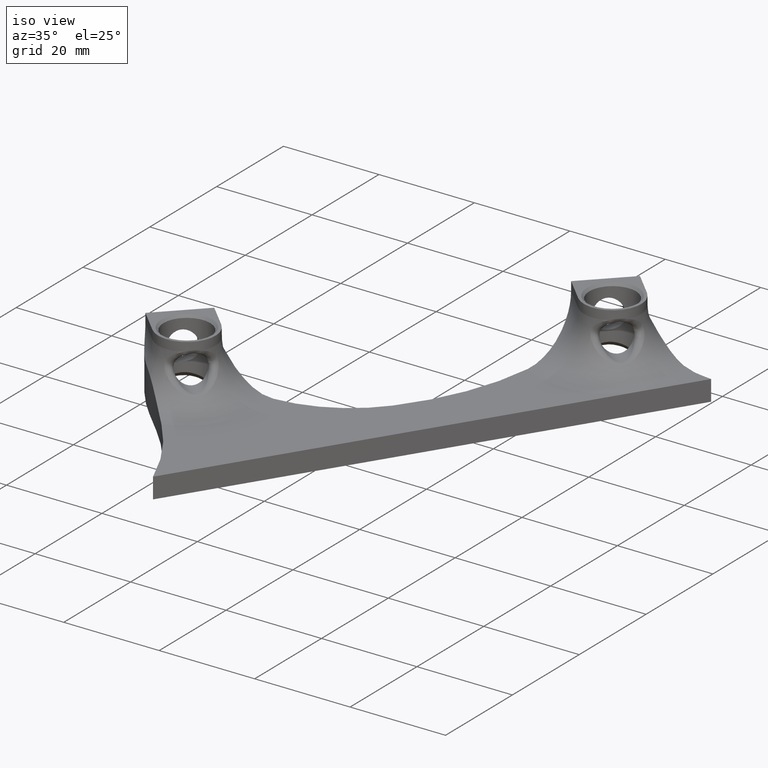
[diagram: clean part render]
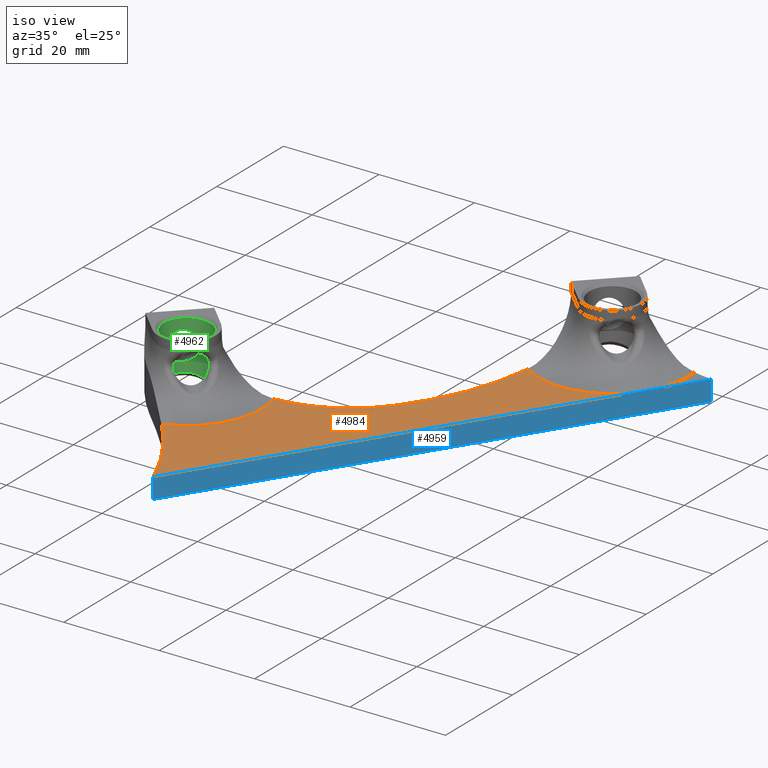
[diagram: same view with three faces highlighted in distinct colors, each labeled with its STEP entity id]
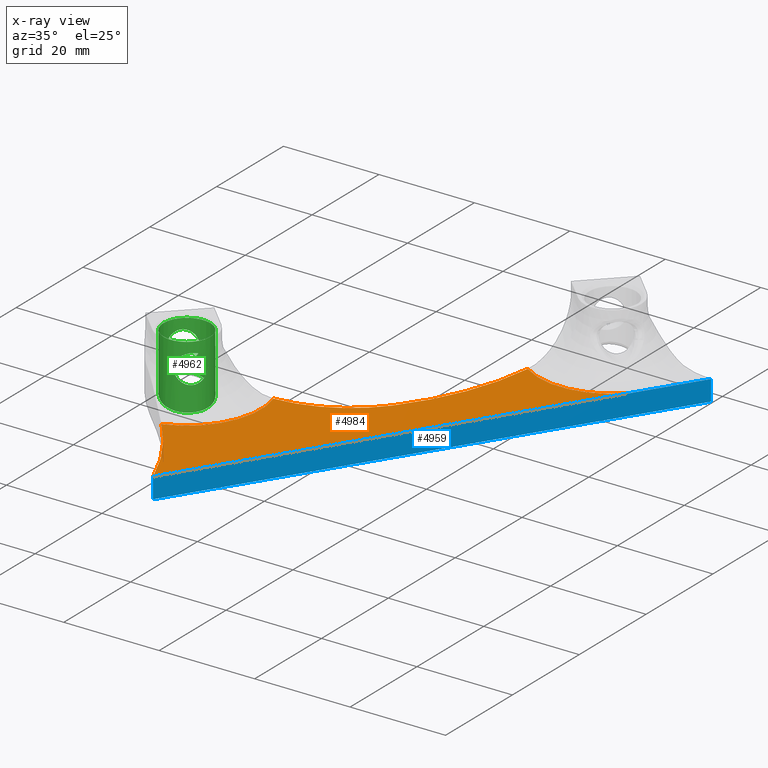
[diagram: x-ray of the same camera — body ghosted, the three highlighted faces saturated]
A machine part, iso view with three faces highlighted in distinct colors.
The next image is the same camera in x-ray (body ghosted, the three faces saturated) — at least one of them is partly hidden behind the body in this view.
Their STEP definitions:

[orange] entity #4984 — the highlighted planar face has unit normal (-0, -0, -1).
#496 = CARTESIAN_POINT ( 'NONE',  ( 55.22091826137020800, 124.3742169914591200, 3.372247331941056200E-019 ) ) ;
#748 = PLANE ( 'NONE',  #2024 ) ;
#750 = DIRECTION ( 'NONE',  ( -8.049322437400349700E-017, -8.049322437400452000E-017, -1.000000000000000000 ) ) ;
#751 = DIRECTION ( 'NONE',  ( 0.0000000000000000000, 1.000000000000000000, -8.049322437400452000E-017 ) ) ;
#1450 = CARTESIAN_POINT ( 'NONE',  ( 22.69400632678918900, 91.84730505687770100, 3.469446951953614200E-015 ) ) ;
#1451 = DIRECTION ( 'NONE',  ( -0.0000000000000000000, -0.0000000000000000000, -1.000000000000000000 ) ) ;
#1452 = DIRECTION ( 'NONE',  ( -1.000000000000000000, 0.0000000000000000000, 0.0000000000000000000 ) ) ;
#2024 = AXIS2_PLACEMENT_3D ( 'NONE', #496, #750, #751 ) ;
#2055 = ORIENTED_EDGE ( 'NONE', *, *, #4415, .F. ) ;
#2081 = ORIENTED_EDGE ( 'NONE', *, *, #4412, .T. ) ;
#2089 = ORIENTED_EDGE ( 'NONE', *, *, #4431, .F. ) ;
#2123 = ORIENTED_EDGE ( 'NONE', *, *, #4565, .T. ) ;
#2141 = ORIENTED_EDGE ( 'NONE', *, *, #4561, .F. ) ;
#2171 = CARTESIAN_POINT ( 'NONE',  ( -14.99895754273689600, 44.14904180402984200, 2.358641852202397600E-015 ) ) ;
#2223 = CARTESIAN_POINT ( 'NONE',  ( -24.81357973590973700, 24.66853625056242900, 3.058294542859309800E-015 ) ) ;
#2252 = CARTESIAN_POINT ( 'NONE',  ( 3.387647492871580700, 53.63105172415416900, -3.330635217210329800E-016 ) ) ;
#2256 = CARTESIAN_POINT ( 'NONE',  ( 33.84320489213770600, 81.04355587659627200, 3.816168961876398800E-015 ) ) ;
#2258 = CARTESIAN_POINT ( 'NONE',  ( -13.74880211378267500, 6.356532730435001900, 1.151014354576345500E-014 ) ) ;
#2268 = CARTESIAN_POINT ( 'NONE',  ( 13.83335568326676500, 79.09918773809502600, 2.860362691553911700E-015 ) ) ;
#2374 = EDGE_LOOP ( 'NONE', ( #2089, #2918, #2123, #2141, #2055, #2081 ) ) ;
#2412 = FACE_OUTER_BOUND ( 'NONE', #2374, .T. ) ;
#2480 = CIRCLE ( 'NONE', #4461, 49.99999999999998600 ) ;
#2497 = CIRCLE ( 'NONE', #4459, 15.52500000000003600 ) ;
#2508 = VECTOR ( 'NONE', #3773, 999.9999999999998900 ) ;
#2511 = LINE ( 'NONE', #3774, #2508 ) ;
#2541 = CIRCLE ( 'NONE', #4480, 65.00000000000000000 ) ;
#2561 = CIRCLE ( 'NONE', #4550, 24.99999999999999300 ) ;
#2562 = CIRCLE ( 'NONE', #4481, 15.52499999999996700 ) ;
#2918 = ORIENTED_EDGE ( 'NONE', *, *, #4516, .F. ) ;
#2975 = VERTEX_POINT ( 'NONE', #2223 ) ;
#2978 = VERTEX_POINT ( 'NONE', #2252 ) ;
#2994 = VERTEX_POINT ( 'NONE', #2256 ) ;
#2996 = VERTEX_POINT ( 'NONE', #2258 ) ;
#3012 = VERTEX_POINT ( 'NONE', #2268 ) ;
#3014 = VERTEX_POINT ( 'NONE', #2171 ) ;
#3086 = DIRECTION ( 'NONE',  ( 8.040797849480097300E-017, 8.040797849480097300E-017, 1.000000000000000000 ) ) ;
#3087 = DIRECTION ( 'NONE',  ( -1.000000000000000000, 0.0000000000000000000, 8.040797849480097300E-017 ) ) ;
#3090 = CARTESIAN_POINT ( 'NONE',  ( -74.15536987958840600, -17.64443747401965700, 0.0000000000000000000 ) ) ;
#3525 = CARTESIAN_POINT ( 'NONE',  ( -35.86250899681252900, 84.60564156058796900, 0.0000000000000000000 ) ) ;
#3526 = DIRECTION ( 'NONE',  ( 8.049322437400349700E-017, 8.049322437400452000E-017, 1.000000000000000000 ) ) ;
#3527 = DIRECTION ( 'NONE',  ( 7.077671781985375300E-015, 1.000000000000000000, -8.049322437400511200E-017 ) ) ;
#3735 = CARTESIAN_POINT ( 'NONE',  ( -29.77331683725253000, 39.37998189283575800, 3.469446951953614200E-015 ) ) ;
#3736 = DIRECTION ( 'NONE',  ( -0.0000000000000000000, -0.0000000000000000000, -1.000000000000000000 ) ) ;
#3737 = DIRECTION ( 'NONE',  ( -1.000000000000000000, 0.0000000000000000000, 0.0000000000000000000 ) ) ;
#3758 = DIRECTION ( 'NONE',  ( -1.804112415015879800E-015, 1.000000000000000000, -8.049322437400438500E-017 ) ) ;
#3759 = DIRECTION ( 'NONE',  ( 8.049322437400349700E-017, 8.049322437400452000E-017, 1.000000000000000000 ) ) ;
#3760 = CARTESIAN_POINT ( 'NONE',  ( -16.23743075197046800, 69.11834664237106600, 0.0000000000000000000 ) ) ;
#3773 = DIRECTION ( 'NONE',  ( -0.5373889647037614100, -0.8433345128800431300, 1.111388846796084300E-016 ) ) ;
#3774 = CARTESIAN_POINT ( 'NONE',  ( 41.96510687104137100, 93.78940794822189300, 0.0000000000000000000 ) ) ;
#4412 = EDGE_CURVE ( 'NONE', #3014, #2975, #2562, .T. ) ;
#4415 = EDGE_CURVE ( 'NONE', #3014, #2978, #2561, .T. ) ;
#4431 = EDGE_CURVE ( 'NONE', #2996, #2975, #2541, .T. ) ;
#4459 = AXIS2_PLACEMENT_3D ( 'NONE', #1450, #1451, #1452 ) ;
#4461 = AXIS2_PLACEMENT_3D ( 'NONE', #3525, #3526, #3527 ) ;
#4480 = AXIS2_PLACEMENT_3D ( 'NONE', #3090, #3086, #3087 ) ;
#4481 = AXIS2_PLACEMENT_3D ( 'NONE', #3735, #3736, #3737 ) ;
#4516 = EDGE_CURVE ( 'NONE', #2994, #2996, #2511, .T. ) ;
#4550 = AXIS2_PLACEMENT_3D ( 'NONE', #3760, #3759, #3758 ) ;
#4561 = EDGE_CURVE ( 'NONE', #2978, #3012, #2480, .T. ) ;
#4565 = EDGE_CURVE ( 'NONE', #2994, #3012, #2497, .T. ) ;
#4984 = ADVANCED_FACE ( 'NONE', ( #2412 ), #748, .F. ) ;

[blue] entity #4959 — the highlighted planar face has unit normal (-0.8433, 0.5374, 0).
#1346 = B_SPLINE_CURVE_WITH_KNOTS ( 'NONE', 3,
 ( #3677, #3644, #3783, #3782, #3781 ),
 .UNSPECIFIED., .F., .F.,
 ( 4, 1, 4 ),
 ( 0.005601070399651537200, 0.008720455892386579800, 0.01183984138512162100 ),
 .UNSPECIFIED. ) ;
#1741 = PLANE ( 'NONE',  #4453 ) ;
#1743 = CARTESIAN_POINT ( 'NONE',  ( 41.96510687104137800, 93.78940794822190700, 135.9580073209098100 ) ) ;
#1744 = DIRECTION ( 'NONE',  ( -0.8433345128800431300, 0.5373889647037614100, 0.0000000000000000000 ) ) ;
#1745 = DIRECTION ( 'NONE',  ( -0.5373889647037613000, -0.8433345128800430200, 0.0000000000000000000 ) ) ;
#2056 = ORIENTED_EDGE ( 'NONE', *, *, #4512, .F. ) ;
#2064 = ORIENTED_EDGE ( 'NONE', *, *, #4513, .T. ) ;
#2119 = ORIENTED_EDGE ( 'NONE', *, *, #4514, .F. ) ;
#2136 = ORIENTED_EDGE ( 'NONE', *, *, #4515, .T. ) ;
#2163 = CARTESIAN_POINT ( 'NONE',  ( 41.96510687104138500, 93.78940794822190700, -4.299999999999999800 ) ) ;
#2256 = CARTESIAN_POINT ( 'NONE',  ( 33.84320489213770600, 81.04355587659627200, 3.816168961876398800E-015 ) ) ;
#2258 = CARTESIAN_POINT ( 'NONE',  ( -13.74880211378267500, 6.356532730435001900, 1.151014354576345500E-014 ) ) ;
#2259 = CARTESIAN_POINT ( 'NONE',  ( 37.19620924321699100, 86.30548806506406800, 3.122724942030829600E-015 ) ) ;
#2266 = CARTESIAN_POINT ( 'NONE',  ( -13.74880211378268400, 6.356532730435017900, -4.299999999999999800 ) ) ;
#2271 = CARTESIAN_POINT ( 'NONE',  ( 41.96510687104138500, 93.78940794822190700, 3.997081116469841600E-015 ) ) ;
#2353 = EDGE_LOOP ( 'NONE', ( #2922, #2923, #2136, #2119, #2064, #2056 ) ) ;
#2465 = FACE_OUTER_BOUND ( 'NONE', #2353, .T. ) ;
#2508 = VECTOR ( 'NONE', #3773, 999.9999999999998900 ) ;
#2510 = VECTOR ( 'NONE', #3775, 1000.000000000000200 ) ;
#2511 = LINE ( 'NONE', #3774, #2508 ) ;
#2512 = VECTOR ( 'NONE', #3777, 1000.000000000000000 ) ;
#2513 = LINE ( 'NONE', #3776, #2510 ) ;
#2514 = VECTOR ( 'NONE', #3779, 999.9999999999998900 ) ;
#2515 = LINE ( 'NONE', #3778, #2512 ) ;
#2519 = LINE ( 'NONE', #3780, #2514 ) ;
#2540 = VECTOR ( 'NONE', #3062, 1000.000000000000000 ) ;
#2548 = LINE ( 'NONE', #3088, #2540 ) ;
#2922 = ORIENTED_EDGE ( 'NONE', *, *, #4516, .T. ) ;
#2923 = ORIENTED_EDGE ( 'NONE', *, *, #4432, .T. ) ;
#2994 = VERTEX_POINT ( 'NONE', #2256 ) ;
#2996 = VERTEX_POINT ( 'NONE', #2258 ) ;
#2999 = VERTEX_POINT ( 'NONE', #2259 ) ;
#3010 = VERTEX_POINT ( 'NONE', #2266 ) ;
#3015 = VERTEX_POINT ( 'NONE', #2271 ) ;
#3018 = VERTEX_POINT ( 'NONE', #2163 ) ;
#3062 = DIRECTION ( 'NONE',  ( -0.0000000000000000000, -0.0000000000000000000, -1.000000000000000000 ) ) ;
#3088 = CARTESIAN_POINT ( 'NONE',  ( -13.74880211378268400, 6.356532730435017900, 135.9580073209098100 ) ) ;
#3644 = CARTESIAN_POINT ( 'NONE',  ( 34.40203895065091900, 81.92054457467426700, -1.585510147852586100E-015 ) ) ;
#3677 = CARTESIAN_POINT ( 'NONE',  ( 33.84320489213770600, 81.04355587659627200, 3.816168961876398800E-015 ) ) ;
#3773 = DIRECTION ( 'NONE',  ( -0.5373889647037614100, -0.8433345128800431300, 1.111388846796084300E-016 ) ) ;
#3774 = CARTESIAN_POINT ( 'NONE',  ( 41.96510687104137100, 93.78940794822189300, 0.0000000000000000000 ) ) ;
#3775 = DIRECTION ( 'NONE',  ( 0.5373889647037613000, 0.8433345128800430200, -0.0000000000000000000 ) ) ;
#3776 = CARTESIAN_POINT ( 'NONE',  ( 41.96510687104137800, 93.78940794822190700, -4.299999999999999800 ) ) ;
#3777 = DIRECTION ( 'NONE',  ( -0.0000000000000000000, -0.0000000000000000000, -1.000000000000000000 ) ) ;
#3778 = CARTESIAN_POINT ( 'NONE',  ( 41.96510687104138500, 93.78940794822190700, 135.9580073209098100 ) ) ;
#3779 = DIRECTION ( 'NONE',  ( -0.5373889647037614100, -0.8433345128800431300, 1.111388846796084300E-016 ) ) ;
#3780 = CARTESIAN_POINT ( 'NONE',  ( 41.96510687104137100, 93.78940794822189300, 0.0000000000000000000 ) ) ;
#3781 = CARTESIAN_POINT ( 'NONE',  ( 37.19620924321699100, 86.30548806506406800, 3.122724942030829600E-015 ) ) ;
#3782 = CARTESIAN_POINT ( 'NONE',  ( 36.63737518470377800, 85.42849936698614500, -1.409651053774990300E-015 ) ) ;
#3783 = CARTESIAN_POINT ( 'NONE',  ( 35.51978973731049600, 83.67465170582546800, 0.01053132988944078600 ) ) ;
#4432 = EDGE_CURVE ( 'NONE', #2996, #3010, #2548, .T. ) ;
#4453 = AXIS2_PLACEMENT_3D ( 'NONE', #1743, #1744, #1745 ) ;
#4512 = EDGE_CURVE ( 'NONE', #2994, #2999, #1346, .T. ) ;
#4513 = EDGE_CURVE ( 'NONE', #3015, #2999, #2519, .T. ) ;
#4514 = EDGE_CURVE ( 'NONE', #3015, #3018, #2515, .T. ) ;
#4515 = EDGE_CURVE ( 'NONE', #3010, #3018, #2513, .T. ) ;
#4516 = EDGE_CURVE ( 'NONE', #2994, #2996, #2511, .T. ) ;
#4959 = ADVANCED_FACE ( 'NONE', ( #2465 ), #1741, .F. ) ;

[green] entity #4962 — the highlighted cylindrical surface (bore or boss wall) has radius 4.9 mm, axis along (-0, -0, 1).
#823 = CARTESIAN_POINT ( 'NONE',  ( -34.64177237819333800, 39.93508606853860200, 5.700000000000000200 ) ) ;
#827 = CARTESIAN_POINT ( 'NONE',  ( -24.87331683725252400, 39.37998189283575800, 10.90000000000000400 ) ) ;
#828 = CARTESIAN_POINT ( 'NONE',  ( -24.87510035517141200, 39.24778773763613800, -2.220352749107722200 ) ) ;
#1326 = B_SPLINE_CURVE_WITH_KNOTS ( 'NONE', 3,
 ( #4316, #2837, #2838, #2839, #2840, #2841, #2842, #2843, #2844, #2845, #2846, #2847 ),
 .UNSPECIFIED., .F., .F.,
 ( 4, 2, 2, 2, 2, 4 ),
 ( 6.051674280621730500E-017, 0.0008662462534985049400, 0.001732492506996949400, 0.002598738760495396000, 0.003031861887244621400, 0.003464985013993846300 ),
 .UNSPECIFIED. ) ;
#1327 = B_SPLINE_CURVE_WITH_KNOTS ( 'NONE', 3,
 ( #4307, #4302, #4301, #4297, #4295, #4315, #4294, #4293, #4292, #4291, #4290, #4289, #4288, #4287, #4286, #4285, #4278, #4284, #4281, #4280, #4279, #4277, #4276, #4275, #4273, #4272, #4268, #4234, #4267, #4266, #4265, #4264, #4262, #4261, #4260, #4259, #4258, #4257, #4274, #4240, #4312, #4220, #4228, #4224, #4300, #4329, #4233, #4226, #4298, #4245, #4250, #4345, #4343, #4336, #4310, #4331, #4323, #4309, #4311, #4212, #4187, #4186, #4211, #4179, #4178, #4184, #4168, #4166, #4165, #4185, #4163, #4157, #4139, #4132, #4116, #4113, #4111, #4103, #4110, #4102, #4096, #4094, #4091, #4089, #4088, #4087, #4101, #4086, #4218, #4217, #4216, #4215, #4214, #4213, #4210, #4209, #4208, #4207, #4206, #4205, #4204, #4203, #4202, #4201, #4200, #4199, #4198, #4197, #4196, #4195, #4194, #4193, #4192, #4176, #4175, #4174, #4173, #4172, #4171, #4170, #4169, #4167, #4164, #4191, #4162, #4161, #4160, #4159, #4158, #4156, #4155, #4154, #4153, #4152, #4190, #4151, #4150, #4149, #4148, #4147, #4146, #4145, #4144, #4143, #4142, #4189, #4141, #4140, #4138, #4137, #4136, #4135, #4134, #4133, #4131, #4130, #4188, #4129, #4128, #4127, #4126, #4125, #4124, #4123, #4122, #4121, #4120, #4183, #4119, #4118, #4117, #4115, #4114, #4112, #4109, #4108, #4107, #4100, #4182, #4099, #4098, #4097, #4095, #4093, #4092, #4090, #4106, #4105, #4104, #4181, #4180, #4177, #4998, #3280, #3273, #3286, #3264, #3285, #3284, #3283, #3282, #3281, #3279, #3278, #3277, #3276, #3275, #3274, #3272, #3271, #3270, #3269, #3268, #3267, #3266, #3265, #3263, #3262, #3261, #3260, #3259, #3258, #3257, #3256, #3255, #3226, #3225, #3224, #3254, #3253, #3252, #3251, #3250, #3249, #3248, #3247, #3246, #3245, #3244, #3243, #3242, #3241, #3240, #3239, #3238, #3237, #3236, #3235, #3234, #3233, #3232, #3231, #3230, #3229, #3228, #3227, #2572, #2573, #2574, #2575, #2576, #2577, #2578, #2579, #2580, #2581, #2582, #2583, #2584, #2585, #2586, #2587, #2588, #2589, #2590, #2591, #2592, #2593, #2594, #2595, #2596, #2597, #2598, #2599, #2600, #2601, #2602, #2603, #2604, #2605, #2606, #2607, #2608, #2609, #2610, #2611, #2612, #2613, #2614, #2615, #2616, #2617, #2618, #2619, #2620, #2621, #2622, #2623, #2624, #2625, #2626, #2627, #2628, #2629, #2630, #2631, #2632, #2633, #2634, #2635, #2636, #2637, #2638, #2639, #2640, #2641, #2642, #2643, #2644, #2645, #2646, #2647, #2648, #2649, #2650, #2651, #2652, #2653, #2654, #2655, #2656, #2657, #2658, #2659, #2660, #2661, #2662, #2663, #2664, #2665, #2666, #2667, #2668, #2669, #2670, #2671, #2672, #2673, #2674, #2675, #2676, #2677, #2678, #2679, #2680, #2681, #2682, #2683, #2684, #2685, #2686, #2687, #2688, #2689, #2690, #2691, #2692, #2693, #2694, #2695, #2696, #2697, #2698, #2699, #2700, #2701, #2702, #2703, #2704, #2705, #2706, #2707, #2708, #2709, #2710, #2711, #2712, #2713, #2714, #2715, #2716, #2717, #2718, #2719, #2720, #2721, #2722, #2723, #2724, #2725, #2726, #2727, #2728, #2729, #2730, #2731, #2732, #2733, #2734, #2735, #2736, #2737, #2738, #2739, #2740, #2741, #2742, #2743, #2744, #2745, #2746, #2747, #2748, #2749, #2750, #2751, #2752, #2753, #2754, #2755, #2756, #2757, #2758, #2759, #2760, #2761, #2762, #2763, #2764, #2765, #2766, #2767, #2768, #2769, #2770, #2771, #2772, #2773, #2774, #2775, #2776, #2777, #2778, #2779, #2780, #2781, #2782, #2783, #2784, #2785, #2786, #2787, #2788, #2789, #2790, #2791, #2792, #2793, #2794, #2795, #2796, #2797, #2798, #2799, #2800, #2801, #2802, #2803, #2804, #2805, #2806, #2807, #2808, #2809, #2810, #2811, #2812, #2813, #2814, #2815, #2816, #2817, #2818, #2819, #2820, #2821, #2822, #2823, #2824, #2825, #2826, #2827, #2828, #2829, #2830, #2831, #2832, #2833, #2834, #2835 ),
 .UNSPECIFIED., .T., .F.,
 ( 4, 3, 3, 3, 3, 3, 3, 3, 3, 3, 3, 3, 3, 3, 3, 3, 3, 3, 3, 3, 3, 3, 3, 3, 3, 3, 3, 3, 3, 3, 3, 3, 3, 3, 3, 3, 3, 3, 3, 3, 3, 3, 3, 3, 3, 3, 3, 3, 3, 3, 3, 3, 3, 3, 3, 3, 3, 3, 3, 3, 3, 3, 3, 3, 3, 3, 3, 3, 3, 3, 3, 3, 3, 3, 3, 3, 3, 3, 3, 3, 3, 3, 3, 3, 3, 3, 3, 3, 3, 3, 3, 3, 3, 3, 3, 3, 3, 3, 3, 3, 3, 3, 3, 3, 3, 3, 3, 3, 3, 3, 3, 3, 3, 3, 3, 3, 3, 3, 3, 3, 3, 3, 3, 3, 3, 3, 3, 3, 3, 3, 3, 3, 3, 3, 3, 3, 3, 3, 3, 3, 3, 3, 3, 3, 3, 3, 3, 3, 3, 3, 3, 3, 3, 3, 3, 3, 3, 3, 3, 3, 3, 3, 3, 3, 3, 3, 3, 3, 3, 3, 3, 3, 3, 4 ),
 ( 0.0000000000000000000, 0.005780346820809248300, 0.01156069364161849700, 0.01734104046242774400, 0.02312138728323699300, 0.02890173410404624200, 0.03468208092485548800, 0.04046242774566474000, 0.04624277456647398600, 0.05202312138728323900, 0.05780346820809248400, 0.06358381502890173000, 0.06936416184971097600, 0.07514450867052023500, 0.08092485549132948100, 0.08670520231213872700, 0.09248554913294797200, 0.09826589595375723200, 0.1040462427745664800, 0.1098265895953757200, 0.1156069364161849700, 0.1213872832369942100, 0.1271676300578034600, 0.1329479768786127100, 0.1387283236994219500, 0.1445086705202312200, 0.1502890173410404700, 0.1560693641618497200, 0.1618497109826589600, 0.1676300578034682100, 0.1734104046242774500, 0.1791907514450867000, 0.1849710982658959400, 0.1907514450867051900, 0.1965317919075144600, 0.2023121387283237100, 0.2080924855491329600, 0.2138728323699422000, 0.2196531791907514500, 0.2254335260115606900, 0.2312138728323699400, 0.2369942196531791800, 0.2427745664739884300, 0.2485549132947976700, 0.2543352601156069200, 0.2601156069364161700, 0.2658959537572254100, 0.2716763005780346600, 0.2774566473988439000, 0.2832369942196532000, 0.2890173410404624500, 0.2947976878612717000, 0.3005780346820809400, 0.3063583815028901900, 0.3121387283236994300, 0.3179190751445086800, 0.3236994219653179200, 0.3294797687861271700, 0.3352601156069364200, 0.3410404624277456600, 0.3468208092485549100, 0.3526011560693641500, 0.3583815028901734000, 0.3641618497109826400, 0.3699421965317918900, 0.3757225433526011300, 0.3815028901734103800, 0.3872832369942196300, 0.3930635838150289300, 0.3988439306358381700, 0.4046242774566474200, 0.4104046242774566600, 0.4161849710982659100, 0.4219653179190751600, 0.4277456647398844000, 0.4335260115606936500, 0.4393063583815028900, 0.4450867052023121400, 0.4508670520231213800, 0.4566473988439306300, 0.4624277456647398800, 0.4682080924855491200, 0.4739884393063583700, 0.4797687861271676100, 0.4855491329479768600, 0.4913294797687861000, 0.4971098265895953500, 0.5028901734104046500, 0.5086705202312138400, 0.5144508670520231400, 0.5202312138728323300, 0.5260115606936416300, 0.5317919075144508200, 0.5375722543352601200, 0.5433526011560693100, 0.5491329479768786200, 0.5549132947976878100, 0.5606936416184971100, 0.5664739884393064100, 0.5722543352601156000, 0.5780346820809249000, 0.5838150289017340900, 0.5895953757225433900, 0.5953757225433525800, 0.6011560693641618800, 0.6069364161849710700, 0.6127167630057803700, 0.6184971098265895600, 0.6242774566473988700, 0.6300578034682080600, 0.6358381502890173600, 0.6416184971098265500, 0.6473988439306358500, 0.6531791907514450400, 0.6589595375722543400, 0.6647398843930635300, 0.6705202312138728300, 0.6763005780346821300, 0.6820809248554913200, 0.6878612716763006200, 0.6936416184971098100, 0.6994219653179191100, 0.7052023121387283000, 0.7109826589595376100, 0.7167630057803468000, 0.7225433526011561000, 0.7283236994219652900, 0.7341040462427745900, 0.7398843930635837800, 0.7456647398843930800, 0.7514450867052022700, 0.7572254335260115700, 0.7630057803468207600, 0.7687861271676300600, 0.7745664739884392500, 0.7803468208092485500, 0.7861271676300578500, 0.7919075144508670400, 0.7976878612716763500, 0.8034682080924855400, 0.8092485549132948400, 0.8150289017341040300, 0.8208092485549133300, 0.8265895953757225200, 0.8323699421965318200, 0.8381502890173410100, 0.8439306358381503100, 0.8497109826589595000, 0.8554913294797688000, 0.8612716763005779900, 0.8670520231213872900, 0.8728323699421964800, 0.8786127167630057900, 0.8843930635838149800, 0.8901734104046242800, 0.8959537572254335800, 0.9017341040462427700, 0.9075144508670520700, 0.9132947976878612600, 0.9190751445086705600, 0.9248554913294797500, 0.9306358381502890500, 0.9364161849710982400, 0.9421965317919075400, 0.9479768786127167300, 0.9537572254335260300, 0.9595375722543352200, 0.9653179190751445300, 0.9710982658959537200, 0.9768786127167630200, 0.9826589595375722100, 0.9884393063583815100, 0.9942196531791907000, 1.000000000000000000 ),
 .UNSPECIFIED. ) ;
#1329 = B_SPLINE_CURVE_WITH_KNOTS ( 'NONE', 3,
 ( #4013, #3978, #4246, #4270, #4271, #4269, #4263, #4304, #4251, #4296, #4247, #4256, #4236, #4237, #4238, #4235, #4283, #4230, #4229, #4349, #4348, #4347, #4346, #4344, #4308, #4342, #4341, #4340, #4339, #4338, #4337, #4335, #4334, #4333 ),
 .UNSPECIFIED., .F., .F.,
 ( 4, 2, 2, 2, 2, 2, 2, 2, 2, 2, 2, 2, 2, 2, 2, 2, 4 ),
 ( 0.009501269032314626400, 0.01015012827838839000, 0.01079898752446215500, 0.01144784677053591900, 0.01209670601660968500, 0.01274556526268344800, 0.01339442450875721200, 0.01404328375483097600, 0.01469214300090474100, 0.01534100224697850700, 0.01598986149305227000, 0.01663872073912603400, 0.01728757998519979800, 0.01793643923127356100, 0.01858529847734732800, 0.01923415772342109200, 0.01988301696949485600 ),
 .UNSPECIFIED. ) ;
#1332 = B_SPLINE_CURVE_WITH_KNOTS ( 'NONE', 3,
 ( #4033, #4032, #4023, #4052, #4022, #4021, #4020, #4019, #4018, #4017 ),
 .UNSPECIFIED., .F., .F.,
 ( 4, 2, 2, 2, 4 ),
 ( 0.003734492920818544100, 0.004319843392486472400, 0.004905193864154401200, 0.005490544335822330000, 0.006075894807490258800 ),
 .UNSPECIFIED. ) ;
#1353 = B_SPLINE_CURVE_WITH_KNOTS ( 'NONE', 3,
 ( #2303, #2313, #2297, #2291, #2286, #2287, #2282, #2314, #2312, #2311, #2310, #2308, #2307, #2306, #2304, #2302 ),
 .UNSPECIFIED., .F., .F.,
 ( 4, 2, 2, 2, 2, 2, 2, 4 ),
 ( 0.0000000000000000000, 0.0004309301854771939300, 0.0008618603709543878600, 0.001292790556431581800, 0.001723720741908775700, 0.002154650927385969800, 0.002585581112863163700, 0.003447441483817548400 ),
 .UNSPECIFIED. ) ;
#1358 = B_SPLINE_CURVE_WITH_KNOTS ( 'NONE', 3,
 ( #4924, #4921, #4919, #4918, #4917, #4915, #4914, #4913, #4912, #3821, #3827, #3826, #3825, #3824, #3823, #3822, #3820, #3819, #3818, #3817, #3816, #3815, #3814, #3813, #3812, #3811, #3810, #3809, #3808, #3807, #3806, #3805, #3804, #3803, #3802, #3801, #3800, #3799, #3798, #3797, #3796, #3795, #3794, #3793, #3792, #3791, #3790, #3789, #3788, #3884, #3882, #3886, #3885, #3883, #3881, #3880, #3068, #3067, #3066, #3065, #3064, #3063 ),
 .UNSPECIFIED., .T., .F.,
 ( 4, 2, 2, 2, 2, 2, 2, 2, 2, 2, 2, 2, 2, 2, 2, 2, 2, 2, 2, 2, 2, 2, 2, 2, 2, 2, 2, 2, 2, 2, 4 ),
 ( 0.0000000000000000000, 0.0006118741257096707400, 0.001223748251419341500, 0.002447496502838685100, 0.003059370628548350100, 0.003671244754258014700, 0.004283118879967679300, 0.004894993005677344300, 0.005506867131387008400, 0.006118741257096673400, 0.007342489508515975600, 0.007954363634225625900, 0.008566237759935277000, 0.009178111885644926400, 0.009789986011354575800, 0.01040186013706422700, 0.01101373426277387800, 0.01162560838848352900, 0.01223748251419318000, 0.01284935663990283300, 0.01346123076561248300, 0.01407310489132213400, 0.01468497901703178600, 0.01529685314274143800, 0.01590872726845108900, 0.01652060139416073800, 0.01713247551987039100, 0.01774434964558004400, 0.01835622377128969300, 0.01896809789699934300, 0.01957997202270899500 ),
 .UNSPECIFIED. ) ;
#1749 = DIRECTION ( 'NONE',  ( -0.0000000000000000000, -0.0000000000000000000, 1.000000000000000000 ) ) ;
#1755 = DIRECTION ( 'NONE',  ( 1.000000000000000000, 0.0000000000000000000, 0.0000000000000000000 ) ) ;
#1756 = CARTESIAN_POINT ( 'NONE',  ( -29.77331683725253000, 39.37998189283575800, -15.00000000000000000 ) ) ;
#2231 = CARTESIAN_POINT ( 'NONE',  ( -24.90710492221936400, 38.80554164529967000, 6.004709660225485000 ) ) ;
#2239 = CARTESIAN_POINT ( 'NONE',  ( -29.19887658971927300, 34.51376997780226200, 6.004709660202988400 ) ) ;
#2262 = CARTESIAN_POINT ( 'NONE',  ( -27.20984067365687100, 35.20402811451434400, 8.528861603367003500 ) ) ;
#2264 = CARTESIAN_POINT ( 'NONE',  ( -25.59736305893866200, 36.81650572922752900, 8.528861603372984500 ) ) ;
#2282 = CARTESIAN_POINT ( 'NONE',  ( -24.95666437555265200, 38.47629775369738800, 7.104854712331163400 ) ) ;
#2286 = CARTESIAN_POINT ( 'NONE',  ( -24.92559151859206100, 38.66377979164810300, 6.710204763161050900 ) ) ;
#2287 = CARTESIAN_POINT ( 'NONE',  ( -24.94396719001207800, 38.54885723333767100, 6.976218504367684800 ) ) ;
#2291 = CARTESIAN_POINT ( 'NONE',  ( -24.91978662058893300, 38.70603169704723700, 6.572949484544916600 ) ) ;
#2297 = CARTESIAN_POINT ( 'NONE',  ( -24.91163412011737300, 38.76760489426435900, 6.292098528787962900 ) ) ;
#2302 = CARTESIAN_POINT ( 'NONE',  ( -25.59736305893866200, 36.81650572922752900, 8.528861603372984500 ) ) ;
#2303 = CARTESIAN_POINT ( 'NONE',  ( -24.90710492221936400, 38.80554164529967000, 6.004709660225485000 ) ) ;
#2304 = CARTESIAN_POINT ( 'NONE',  ( -25.45469191721611000, 37.04891986351570000, 8.421960542809772600 ) ) ;
#2306 = CARTESIAN_POINT ( 'NONE',  ( -25.33932067228145600, 37.28072257275007200, 8.283370181004391600 ) ) ;
#2307 = CARTESIAN_POINT ( 'NONE',  ( -25.20178602928777100, 37.61209926301685200, 8.041274545979632600 ) ) ;
#2308 = CARTESIAN_POINT ( 'NONE',  ( -25.16158840936125100, 37.72037222904568000, 7.954444520885900300 ) ) ;
#2310 = CARTESIAN_POINT ( 'NONE',  ( -25.09110776059976200, 37.93109905034074100, 7.767344374808138800 ) ) ;
#2311 = CARTESIAN_POINT ( 'NONE',  ( -25.06079612504828400, 38.03389165285322100, 7.666605235381694200 ) ) ;
#2312 = CARTESIAN_POINT ( 'NONE',  ( -25.01024871181234500, 38.22542897956328300, 7.454723728563744000 ) ) ;
#2313 = CARTESIAN_POINT ( 'NONE',  ( -24.90926213739146900, 38.78726739272293900, 6.148596129635839300 ) ) ;
#2314 = CARTESIAN_POINT ( 'NONE',  ( -24.98976247671302900, 38.31490272211969700, 7.343074172263429000 ) ) ;
#2338 = EDGE_LOOP ( 'NONE', ( #4372, #4399, #4381, #4375 ) ) ;
#2362 = EDGE_LOOP ( 'NONE', ( #4352 ) ) ;
#2368 = EDGE_LOOP ( 'NONE', ( #4365 ) ) ;
#2369 = EDGE_LOOP ( 'NONE', ( #4361 ) ) ;
#2382 = VERTEX_POINT ( 'NONE', #828 ) ;
#2383 = VERTEX_POINT ( 'NONE', #827 ) ;
#2388 = VERTEX_POINT ( 'NONE', #823 ) ;
#2453 = CYLINDRICAL_SURFACE ( 'NONE', #4449, 4.900000000000004800 ) ;
#2457 = FACE_OUTER_BOUND ( 'NONE', #2362, .T. ) ;
#2460 = FACE_BOUND ( 'NONE', #2369, .T. ) ;
#2461 = FACE_OUTER_BOUND ( 'NONE', #2368, .T. ) ;
#2470 = FACE_BOUND ( 'NONE', #2338, .T. ) ;
#2490 = CIRCLE ( 'NONE', #4466, 4.900000000000004800 ) ;
#2572 = CARTESIAN_POINT ( 'NONE',  ( -34.63603660219838100, 39.98358552845149200, 0.1600119681446723100 ) ) ;
#2573 = CARTESIAN_POINT ( 'NONE',  ( -34.63375894037964300, 40.00169319523648400, 0.1650515895142802600 ) ) ;
#2574 = CARTESIAN_POINT ( 'NONE',  ( -34.63106585878787800, 40.02206790247345200, 0.1706877962609626400 ) ) ;
#2575 = CARTESIAN_POINT ( 'NONE',  ( -34.62029353242081000, 40.10356673142131700, 0.1932326232476922200 ) ) ;
#2576 = CARTESIAN_POINT ( 'NONE',  ( -34.60759551387490500, 40.18384578703150100, 0.2148895024079259500 ) ) ;
#2577 = CARTESIAN_POINT ( 'NONE',  ( -34.59312832895370300, 40.26282796348755300, 0.2356584337416638100 ) ) ;
#2578 = CARTESIAN_POINT ( 'NONE',  ( -34.58589473649311000, 40.30231905171557800, 0.2460428994085327200 ) ) ;
#2579 = CARTESIAN_POINT ( 'NONE',  ( -34.57821884487590600, 40.34148614440906000, 0.2562053781187765300 ) ) ;
#2580 = CARTESIAN_POINT ( 'NONE',  ( -34.57012013096829900, 40.38032091606617500, 0.2661458698723969700 ) ) ;
#2581 = CARTESIAN_POINT ( 'NONE',  ( -34.56607077401449900, 40.39973830189473600, 0.2711161157492071300 ) ) ;
#2582 = CARTESIAN_POINT ( 'NONE',  ( -34.56191571021193500, 40.41907262087193700, 0.2760308648868625700 ) ) ;
#2583 = CARTESIAN_POINT ( 'NONE',  ( -34.55765736524500700, 40.43832291169911000, 0.2808901172853609000 ) ) ;
#2584 = CARTESIAN_POINT ( 'NONE',  ( -34.55339902027807900, 40.45757320252628400, 0.2857493696838592200 ) ) ;
#2585 = CARTESIAN_POINT ( 'NONE',  ( -34.54931062874777600, 40.47557113126934800, 0.2902623933207912900 ) ) ;
#2586 = CARTESIAN_POINT ( 'NONE',  ( -34.54457490556934100, 40.49582079049157800, 0.2953013842633880300 ) ) ;
#2587 = CARTESIAN_POINT ( 'NONE',  ( -34.50668912014183600, 40.65781806426944200, 0.3356133118041619800 ) ) ;
#2588 = CARTESIAN_POINT ( 'NONE',  ( -34.46114115596319700, 40.81535148461520600, 0.3723137477658853800 ) ) ;
#2589 = CARTESIAN_POINT ( 'NONE',  ( -34.40890644935581800, 40.96784490586936300, 0.4054026921485598400 ) ) ;
#2590 = CARTESIAN_POINT ( 'NONE',  ( -34.38278909605213600, 41.04409161649644500, 0.4219471643398970400 ) ) ;
#2591 = CARTESIAN_POINT ( 'NONE',  ( -34.35500028686362100, 41.11908094175430500, 0.4375887636364711500 ) ) ;
#2592 = CARTESIAN_POINT ( 'NONE',  ( -34.32566237181628600, 41.19275604698113100, 0.4523274900382831500 ) ) ;
#2593 = CARTESIAN_POINT ( 'NONE',  ( -34.31099341429261800, 41.22959359959455100, 0.4596968532391891300 ) ) ;
#2594 = CARTESIAN_POINT ( 'NONE',  ( -34.29593717697766000, 41.26610275124783600, 0.4668404982164037800 ) ) ;
#2595 = CARTESIAN_POINT ( 'NONE',  ( -34.28050890661543800, 41.30227730454338800, 0.4737584249699284800 ) ) ;
#2596 = CARTESIAN_POINT ( 'NONE',  ( -34.27279477143432700, 41.32036458119116400, 0.4772173883466909200 ) ) ;
#2597 = CARTESIAN_POINT ( 'NONE',  ( -34.26498762728339600, 41.33836821755571100, 0.4806199221675318000 ) ) ;
#2598 = CARTESIAN_POINT ( 'NONE',  ( -34.25708937495716800, 41.35628749423595000, 0.4839660264324488500 ) ) ;
#2599 = CARTESIAN_POINT ( 'NONE',  ( -34.24919112263094000, 41.37420677091618900, 0.4873121306973659000 ) ) ;
#2600 = CARTESIAN_POINT ( 'NONE',  ( -34.24170861647608900, 41.39092805049027400, 0.4903989497222174800 ) ) ;
#2601 = CARTESIAN_POINT ( 'NONE',  ( -34.23312319023668200, 41.40979156220927100, 0.4938350505594313900 ) ) ;
#2602 = CARTESIAN_POINT ( 'NONE',  ( -34.16443978032146600, 41.56069965596126500, 0.5213238572571425900 ) ) ;
#2603 = CARTESIAN_POINT ( 'NONE',  ( -34.08863194484627000, 41.70693090537019300, 0.5450101943597277500 ) ) ;
#2604 = CARTESIAN_POINT ( 'NONE',  ( -34.00643133922467600, 41.84792468252784700, 0.5648940618671864900 ) ) ;
#2605 = CARTESIAN_POINT ( 'NONE',  ( -33.96533103641387200, 41.91842157110667000, 0.5748359956209159200 ) ) ;
#2606 = CARTESIAN_POINT ( 'NONE',  ( -33.92263307490686900, 41.98761075081786500, 0.5838273119758650200 ) ) ;
#2607 = CARTESIAN_POINT ( 'NONE',  ( -33.87843152826543000, 42.05543201825954500, 0.5918680109320319000 ) ) ;
#2608 = CARTESIAN_POINT ( 'NONE',  ( -33.83422998162399900, 42.12325328570121700, 0.5999087098881987800 ) ) ;
#2609 = CARTESIAN_POINT ( 'NONE',  ( -33.78935423506030100, 42.18856186479111900, 0.6068907157683829400 ) ) ;
#2610 = CARTESIAN_POINT ( 'NONE',  ( -33.74141148186929200, 42.25473838536930800, 0.6131382556041845600 ) ) ;
#2611 = CARTESIAN_POINT ( 'NONE',  ( -33.64552597548727400, 42.38709142652567900, 0.6256333352757877900 ) ) ;
#2612 = CARTESIAN_POINT ( 'NONE',  ( -33.54308920575856200, 42.51453825502802900, 0.6342826756938503300 ) ) ;
#2613 = CARTESIAN_POINT ( 'NONE',  ( -33.43464245206058600, 42.63646692156695700, 0.6390862768583736000 ) ) ;
#2614 = CARTESIAN_POINT ( 'NONE',  ( -33.32619569836260400, 42.75839558810589100, 0.6438898780228967700 ) ) ;
#2615 = CARTESIAN_POINT ( 'NONE',  ( -33.21079061870114700, 42.87567908416326600, 0.6448248823536356600 ) ) ;
#2616 = CARTESIAN_POINT ( 'NONE',  ( -33.09187037871057400, 42.98514518906469600, 0.6419598625913292000 ) ) ;
#2617 = CARTESIAN_POINT ( 'NONE',  ( -32.97295013871999500, 43.09461129396612500, 0.6390948428290227400 ) ) ;
#2618 = CARTESIAN_POINT ( 'NONE',  ( -32.84790124629732600, 43.19884015400136700, 0.6324124772539250200 ) ) ;
#2619 = CARTESIAN_POINT ( 'NONE',  ( -32.71715973246901400, 43.29709677604807900, 0.6219127658660395000 ) ) ;
#2620 = CARTESIAN_POINT ( 'NONE',  ( -32.65178897555485100, 43.34622508707143900, 0.6166629101720967300 ) ) ;
#2621 = CARTESIAN_POINT ( 'NONE',  ( -32.58499651422092600, 43.39386067349004600, 0.6104587180249561000 ) ) ;
#2622 = CARTESIAN_POINT ( 'NONE',  ( -32.51684559037875700, 43.43991415591229100, 0.6033001894246177200 ) ) ;
#2623 = CARTESIAN_POINT ( 'NONE',  ( -32.48277012845766600, 43.46294089712341700, 0.5997209251244484100 ) ) ;
#2624 = CARTESIAN_POINT ( 'NONE',  ( -32.44835514217621900, 43.48557214226504900, 0.5959030767109809700 ) ) ;
#2625 = CARTESIAN_POINT ( 'NONE',  ( -32.41360908435599000, 43.50779691411341300, 0.5918466441842129600 ) ) ;
#2626 = CARTESIAN_POINT ( 'NONE',  ( -32.37886302653576100, 43.53002168596177800, 0.5877902116574449400 ) ) ;
#2627 = CARTESIAN_POINT ( 'NONE',  ( -32.34219566887868100, 43.55280136950523900, 0.5832915343970233000 ) ) ;
#2628 = CARTESIAN_POINT ( 'NONE',  ( -32.30838651395929200, 43.57324097548757200, 0.5789615942640123900 ) ) ;
#2629 = CARTESIAN_POINT ( 'NONE',  ( -32.17314989428172800, 43.65499939941689400, 0.5616418337319687400 ) ) ;
#2630 = CARTESIAN_POINT ( 'NONE',  ( -32.03219224792690800, 43.73127691207502500, 0.5407028897554538900 ) ) ;
#2631 = CARTESIAN_POINT ( 'NONE',  ( -31.88590387609183100, 43.80117811143183800, 0.5161447623344694900 ) ) ;
#2632 = CARTESIAN_POINT ( 'NONE',  ( -31.81275969017428900, 43.83612871111024100, 0.5038656986239773400 ) ) ;
#2633 = CARTESIAN_POINT ( 'NONE',  ( -31.73828487935718500, 43.86948515032925400, 0.4906818390523685600 ) ) ;
#2634 = CARTESIAN_POINT ( 'NONE',  ( -31.66254093942547200, 43.90113576013212800, 0.4765931836196412000 ) ) ;
#2635 = CARTESIAN_POINT ( 'NONE',  ( -31.62466896945962000, 43.91696106503356100, 0.4695488559032775000 ) ) ;
#2636 = CARTESIAN_POINT ( 'NONE',  ( -31.58647985256288100, 43.93235992135695500, 0.4622783292216317600 ) ) ;
#2637 = CARTESIAN_POINT ( 'NONE',  ( -31.54798209785905500, 43.94731844850979700, 0.4547816035747088700 ) ) ;
#2638 = CARTESIAN_POINT ( 'NONE',  ( -31.52873322050714200, 43.95479771208621900, 0.4510332407512475100 ) ) ;
#2639 = CARTESIAN_POINT ( 'NONE',  ( -31.50940719234863300, 43.96216689438891500, 0.4472283281864689600 ) ) ;
#2640 = CARTESIAN_POINT ( 'NONE',  ( -31.49000512918354700, 43.96942426728028900, 0.4433668658803680000 ) ) ;
#2641 = CARTESIAN_POINT ( 'NONE',  ( -31.47060306601846200, 43.97668164017166200, 0.4395054035742670400 ) ) ;
#2642 = CARTESIAN_POINT ( 'NONE',  ( -31.44960626551438000, 43.98437338945560500, 0.4352786828043678200 ) ) ;
#2643 = CARTESIAN_POINT ( 'NONE',  ( -31.43157198547202900, 43.99085923488288300, 0.4316128297381042200 ) ) ;
#2644 = CARTESIAN_POINT ( 'NONE',  ( -31.28729774513322300, 44.04274599830111500, 0.4022860052079954600 ) ) ;
#2645 = CARTESIAN_POINT ( 'NONE',  ( -31.13742240669587200, 44.08899680846835900, 0.3695648772238258600 ) ) ;
#2646 = CARTESIAN_POINT ( 'NONE',  ( -30.98235281977626000, 44.12847975984201600, 0.3334494457855937700 ) ) ;
#2647 = CARTESIAN_POINT ( 'NONE',  ( -30.90481802631644800, 44.14822123552884400, 0.3153917300664776900 ) ) ;
#2648 = CARTESIAN_POINT ( 'NONE',  ( -30.82598752830440600, 44.16627027394572000, 0.2964854384838472900 ) ) ;
#2649 = CARTESIAN_POINT ( 'NONE',  ( -30.74593019299505800, 44.18248366381214300, 0.2767305710377008200 ) ) ;
#2650 = CARTESIAN_POINT ( 'NONE',  ( -30.70590152534038400, 44.19059035874535400, 0.2668531373146276200 ) ) ;
#2651 = CARTESIAN_POINT ( 'NONE',  ( -30.66556634297005600, 44.19823813268642700, 0.2567635596256747100 ) ) ;
#2652 = CARTESIAN_POINT ( 'NONE',  ( -30.62493444707152800, 44.20540907046949300, 0.2464618379708436400 ) ) ;
#2653 = CARTESIAN_POINT ( 'NONE',  ( -30.60461849912226400, 44.20899453936102900, 0.2413109771434281400 ) ) ;
#2654 = CARTESIAN_POINT ( 'NONE',  ( -30.58422838541878300, 44.21246079939008700, 0.2361070803245427200 ) ) ;
#2655 = CARTESIAN_POINT ( 'NONE',  ( -30.56376540762454000, 44.21580561352666900, 0.2308501475141878100 ) ) ;
#2656 = CARTESIAN_POINT ( 'NONE',  ( -30.54330242983030200, 44.21915042766325900, 0.2255932147038329200 ) ) ;
#2657 = CARTESIAN_POINT ( 'NONE',  ( -30.52119139517936100, 44.22261073098469100, 0.2198733064837805300 ) ) ;
#2658 = CARTESIAN_POINT ( 'NONE',  ( -30.50215923524567800, 44.22547348388074100, 0.2149202411087132400 ) ) ;
#2659 = CARTESIAN_POINT ( 'NONE',  ( -30.42603059551094400, 44.23692449546494000, 0.1951079796084440600 ) ) ;
#2660 = CARTESIAN_POINT ( 'NONE',  ( -30.34844609309527600, 44.24675984980964200, 0.1744513306690716500 ) ) ;
#2661 = CARTESIAN_POINT ( 'NONE',  ( -30.26947308086475300, 44.25479768237331500, 0.1529502942905960300 ) ) ;
#2662 = CARTESIAN_POINT ( 'NONE',  ( -30.22998657474949300, 44.25881659865515200, 0.1421997761013582300 ) ) ;
#2663 = CARTESIAN_POINT ( 'NONE',  ( -30.19015319269963600, 44.26238608503448500, 0.1312381610523442600 ) ) ;
#2664 = CARTESIAN_POINT ( 'NONE',  ( -30.14998291355940900, 44.26548316363281500, 0.1200654491435547400 ) ) ;
#2665 = CARTESIAN_POINT ( 'NONE',  ( -30.12989777398929200, 44.26703170293198000, 0.1144790931891599800 ) ) ;
#2666 = CARTESIAN_POINT ( 'NONE',  ( -30.10972842680357100, 44.26846213815902300, 0.1088399630198193500 ) ) ;
#2667 = CARTESIAN_POINT ( 'NONE',  ( -30.08947622084672000, 44.26977158608079300, 0.1031480586355364900 ) ) ;
#2668 = CARTESIAN_POINT ( 'NONE',  ( -30.06922401488986900, 44.27108103400257000, 0.09745615425125361800 ) ) ;
#2669 = CARTESIAN_POINT ( 'NONE',  ( -30.04758696149786700, 44.27233738452983400, 0.09134176412883528200 ) ) ;
#2670 = CARTESIAN_POINT ( 'NONE',  ( -30.02847244442015300, 44.27333407882554200, 0.08591402283785777600 ) ) ;
#2671 = CARTESIAN_POINT ( 'NONE',  ( -29.95201437610929000, 44.27732085600838700, 0.06420305767394773900 ) ) ;
#2672 = CARTESIAN_POINT ( 'NONE',  ( -29.87393482083355400, 44.27959567000456800, 0.04161264000271738800 ) ) ;
#2673 = CARTESIAN_POINT ( 'NONE',  ( -29.79431681024977900, 44.27993689274485700, 0.01814276982416498900 ) ) ;
#2674 = CARTESIAN_POINT ( 'NONE',  ( -29.75450780495789300, 44.28010750411500100, 0.006407834734888789900 ) ) ;
#2675 = CARTESIAN_POINT ( 'NONE',  ( -29.71431450839690000, 44.27979463822589400, -0.005546963481219368400 ) ) ;
#2676 = CARTESIAN_POINT ( 'NONE',  ( -29.67374931422178400, 44.27897018720405200, -0.01772162482415601300 ) ) ;
#2677 = CARTESIAN_POINT ( 'NONE',  ( -29.65346671713422200, 44.27855796169313200, -0.02380895549562433300 ) ) ;
#2678 = CARTESIAN_POINT ( 'NONE',  ( -29.63309116727215600, 44.27801783627671000, -0.02995125194879965900 ) ) ;
#2679 = CARTESIAN_POINT ( 'NONE',  ( -29.61262434605698600, 44.27734627822444200, -0.03614851418368321400 ) ) ;
#2680 = CARTESIAN_POINT ( 'NONE',  ( -29.59215752484181600, 44.27667472017216700, -0.04234577641856677300 ) ) ;
#2681 = CARTESIAN_POINT ( 'NONE',  ( -29.56963422994342100, 44.27578245530323600, -0.04919831226007458100 ) ) ;
#2682 = CARTESIAN_POINT ( 'NONE',  ( -29.55095183989652700, 44.27493376266562600, -0.05490519823345661700 ) ) ;
#2683 = CARTESIAN_POINT ( 'NONE',  ( -29.47622227970893500, 44.27153899211519000, -0.07773274212698477700 ) ) ;
#2684 = CARTESIAN_POINT ( 'NONE',  ( -29.39964597775835000, 44.26634626099308200, -0.1014875521585806600 ) ) ;
#2685 = CARTESIAN_POINT ( 'NONE',  ( -29.32132606438830900, 44.25909086284715200, -0.1261696283282442400 ) ) ;
#2686 = CARTESIAN_POINT ( 'NONE',  ( -29.28216610770329000, 44.25546316377419500, -0.1385106664130760200 ) ) ;
#2687 = CARTESIAN_POINT ( 'NONE',  ( -29.24257065122494800, 44.25131967140504200, -0.1510835210324260600 ) ) ;
#2688 = CARTESIAN_POINT ( 'NONE',  ( -29.20255512512406800, 44.24662663721234400, -0.1638881921862921100 ) ) ;
#2689 = CARTESIAN_POINT ( 'NONE',  ( -29.18254736207363100, 44.24428012011599500, -0.1702905277632251200 ) ) ;
#2690 = CARTESIAN_POINT ( 'NONE',  ( -29.16243460904064100, 44.24179621149485800, -0.1767508174737867400 ) ) ;
#2691 = CARTESIAN_POINT ( 'NONE',  ( -29.14221896306771200, 44.23917065982139700, -0.1832690613179782700 ) ) ;
#2692 = CARTESIAN_POINT ( 'NONE',  ( -29.13211114008124600, 44.23785788398466700, -0.1865281832400740300 ) ) ;
#2693 = CARTESIAN_POINT ( 'NONE',  ( -29.12197759564285700, 44.23650969706959300, -0.1898017936955755700 ) ) ;
#2694 = CARTESIAN_POINT ( 'NONE',  ( -29.11181860269702800, 44.23512556585718900, -0.1930898926844858100 ) ) ;
#2695 = CARTESIAN_POINT ( 'NONE',  ( -29.10165960975119900, 44.23374143464478400, -0.1963779916733960600 ) ) ;
#2696 = CARTESIAN_POINT ( 'NONE',  ( -29.09028406885683900, 44.23215143091163500, -0.2000675643528893300 ) ) ;
#2697 = CARTESIAN_POINT ( 'NONE',  ( -29.08126555858532900, 44.23086480501733300, -0.2029976552514380900 ) ) ;
#2698 = CARTESIAN_POINT ( 'NONE',  ( -29.00911747641325200, 44.22057179786286000, -0.2264383824398281700 ) ) ;
#2699 = CARTESIAN_POINT ( 'NONE',  ( -28.93455905897690900, 44.20829438663045600, -0.2509785489636581800 ) ) ;
#2700 = CARTESIAN_POINT ( 'NONE',  ( -28.85773064072485300, 44.19368129316478600, -0.2766181548229280600 ) ) ;
#2701 = CARTESIAN_POINT ( 'NONE',  ( -28.81931643159882500, 44.18637474643195900, -0.2894379577525630400 ) ) ;
#2702 = CARTESIAN_POINT ( 'NONE',  ( -28.78033529792361000, 44.17848401618464700, -0.3025326205160583400 ) ) ;
#2703 = CARTESIAN_POINT ( 'NONE',  ( -28.74080846193047000, 44.16996377744553800, -0.3159021431134133600 ) ) ;
#2704 = CARTESIAN_POINT ( 'NONE',  ( -28.72104504393389800, 44.16570365807598400, -0.3225869044120908100 ) ) ;
#2705 = CARTESIAN_POINT ( 'NONE',  ( -28.70114524053267500, 44.16128614817028400, -0.3293403806692301000 ) ) ;
#2706 = CARTESIAN_POINT ( 'NONE',  ( -28.68111195265866800, 44.15670550741399600, -0.3361625718848373400 ) ) ;
#2707 = CARTESIAN_POINT ( 'NONE',  ( -28.67109530872166800, 44.15441518703585200, -0.3395736674926409500 ) ) ;
#2708 = CARTESIAN_POINT ( 'NONE',  ( -28.66104529630895900, 44.15208408321411300, -0.3430019418400616100 ) ) ;
#2709 = CARTESIAN_POINT ( 'NONE',  ( -28.65096229411367200, 44.14971147421620400, -0.3464473949270977000 ) ) ;
#2710 = CARTESIAN_POINT ( 'NONE',  ( -28.64087929191838800, 44.14733886521829500, -0.3498928480141337800 ) ) ;
#2711 = CARTESIAN_POINT ( 'NONE',  ( -28.62909150919194800, 44.14452011435194800, -0.3539287135448133700 ) ) ;
#2712 = CARTESIAN_POINT ( 'NONE',  ( -28.62061470777150200, 44.14246840732479900, -0.3568352904070540800 ) ) ;
#2713 = CARTESIAN_POINT ( 'NONE',  ( -28.55280029640793100, 44.12605475110751000, -0.3800879053049797100 ) ) ;
#2714 = CARTESIAN_POINT ( 'NONE',  ( -28.48108361118563900, 44.10716894732961900, -0.4049486712845856700 ) ) ;
#2715 = CARTESIAN_POINT ( 'NONE',  ( -28.40569153181166900, 44.08525563874234600, -0.4314175883458719600 ) ) ;
#2716 = CARTESIAN_POINT ( 'NONE',  ( -28.36799549212468100, 44.07429898444871700, -0.4446520468765150500 ) ) ;
#2717 = CARTESIAN_POINT ( 'NONE',  ( -28.32938166428928300, 44.06258464899833200, -0.4582885431775792800 ) ) ;
#2718 = CARTESIAN_POINT ( 'NONE',  ( -28.28988538166560200, 44.05003875721924800, -0.4723270772490628700 ) ) ;
#2719 = CARTESIAN_POINT ( 'NONE',  ( -28.27013724035376200, 44.04376581132970600, -0.4793463442848046000 ) ) ;
#2720 = CARTESIAN_POINT ( 'NONE',  ( -28.25016856295123400, 44.03728493301166200, -0.4864661207631544900 ) ) ;
#2721 = CARTESIAN_POINT ( 'NONE',  ( -28.22998425143662600, 44.03058664163551600, -0.4936864066841066800 ) ) ;
#2722 = CARTESIAN_POINT ( 'NONE',  ( -28.21989209567932000, 44.02723749594744600, -0.4972965496445827000 ) ) ;
#2723 = CARTESIAN_POINT ( 'NONE',  ( -28.20974603660882700, 44.02383399454271300, -0.5009318199657064600 ) ) ;
#2724 = CARTESIAN_POINT ( 'NONE',  ( -28.19954671888258300, 44.02037493809883300, -0.5045922176474849600 ) ) ;
#2725 = CARTESIAN_POINT ( 'NONE',  ( -28.19444706001946300, 44.01864540987689600, -0.5064224164883742700 ) ) ;
#2726 = CARTESIAN_POINT ( 'NONE',  ( -28.18933408682983800, 44.01690199275061800, -0.5082588971694281800 ) ) ;
#2727 = CARTESIAN_POINT ( 'NONE',  ( -28.18420788193995800, 44.01514453595255100, -0.5101016596906430300 ) ) ;
#2728 = CARTESIAN_POINT ( 'NONE',  ( -28.17908167705007800, 44.01338707915449100, -0.5119444222118578700 ) ) ;
#2729 = CARTESIAN_POINT ( 'NONE',  ( -28.17201893137636000, 44.01094903775646100, -0.5144860056056079800 ) ) ;
#2730 = CARTESIAN_POINT ( 'NONE',  ( -28.16878965617442500, 44.00982989522003000, -0.5156487927747751600 ) ) ;
#2731 = CARTESIAN_POINT ( 'NONE',  ( -28.11712125294348000, 43.99192361463710900, -0.5342533874814504600 ) ) ;
#2732 = CARTESIAN_POINT ( 'NONE',  ( -28.05440809141950000, 43.96926701312286000, -0.5569966018021260700 ) ) ;
#2733 = CARTESIAN_POINT ( 'NONE',  ( -27.98121080035977900, 43.94050334904365900, -0.5838784357368037600 ) ) ;
#2734 = CARTESIAN_POINT ( 'NONE',  ( -27.94461215482991500, 43.92612151700406300, -0.5973193527041426000 ) ) ;
#2735 = CARTESIAN_POINT ( 'NONE',  ( -27.90539688709784400, 43.91020577132492500, -0.6117949245749809700 ) ) ;
#2736 = CARTESIAN_POINT ( 'NONE',  ( -27.86366609662903200, 43.89254591441331100, -0.6273051513493200800 ) ) ;
#2737 = CARTESIAN_POINT ( 'NONE',  ( -27.84280070139463000, 43.88371598595750800, -0.6350602647364896900 ) ) ;
#2738 = CARTESIAN_POINT ( 'NONE',  ( -27.82130678603324400, 43.87444962553565400, -0.6430740418495327600 ) ) ;
#2739 = CARTESIAN_POINT ( 'NONE',  ( -27.79919931509395800, 43.86471822942306900, -0.6513464826884523000 ) ) ;
#2740 = CARTESIAN_POINT ( 'NONE',  ( -27.77709184415467200, 43.85498683331048400, -0.6596189235273718400 ) ) ;
#2741 = CARTESIAN_POINT ( 'NONE',  ( -27.75536406335014000, 43.84524581450062200, -0.6677756175537243900 ) ) ;
#2742 = CARTESIAN_POINT ( 'NONE',  ( -27.73105288814171100, 43.83409886055925900, -0.6769397963828360800 ) ) ;
#2743 = CARTESIAN_POINT ( 'NONE',  ( -27.63380818730800600, 43.78951104479378400, -0.7135965116992828400 ) ) ;
#2744 = CARTESIAN_POINT ( 'NONE',  ( -27.55116536964453300, 43.74783435283319500, -0.7452749307231056900 ) ) ;
#2745 = CARTESIAN_POINT ( 'NONE',  ( -27.48217047435284500, 43.71133830206504500, -0.7719750534543046200 ) ) ;
#2746 = CARTESIAN_POINT ( 'NONE',  ( -27.44767302670700500, 43.69309027668096900, -0.7853251148199041900 ) ) ;
#2747 = CARTESIAN_POINT ( 'NONE',  ( -27.41658867371752400, 43.67612472958637000, -0.7974306021123470600 ) ) ;
#2748 = CARTESIAN_POINT ( 'NONE',  ( -27.38881252185772300, 43.66065230409888200, -0.8082915153316341300 ) ) ;
#2749 = CARTESIAN_POINT ( 'NONE',  ( -27.37492444592782100, 43.65291609135513100, -0.8137219719412778200 ) ) ;
#2750 = CARTESIAN_POINT ( 'NONE',  ( -27.36186363078815000, 43.64555242291267200, -0.8188412850326338700 ) ) ;
#2751 = CARTESIAN_POINT ( 'NONE',  ( -27.34961841299157100, 43.63858330036793400, -0.8236494546056994900 ) ) ;
#2752 = CARTESIAN_POINT ( 'NONE',  ( -27.34349580409328000, 43.63509873909556100, -0.8260535393922323600 ) ) ;
#2753 = CARTESIAN_POINT ( 'NONE',  ( -27.33757711110138200, 43.63171276991453600, -0.8283798382991907100 ) ) ;
#2754 = CARTESIAN_POINT ( 'NONE',  ( -27.33186098048882000, 43.62842787924940800, -0.8306283513265788600 ) ) ;
#2755 = CARTESIAN_POINT ( 'NONE',  ( -27.32900291518253500, 43.62678543391684400, -0.8317526078402729400 ) ) ;
#2756 = CARTESIAN_POINT ( 'NONE',  ( -27.32619549159873900, 43.62516825548598100, -0.8328574178840759700 ) ) ;
#2757 = CARTESIAN_POINT ( 'NONE',  ( -27.32343854745580500, 43.62357663847096500, -0.8339427814579840600 ) ) ;
#2758 = CARTESIAN_POINT ( 'NONE',  ( -27.32206007538433900, 43.62278082996346000, -0.8344854632449381100 ) ) ;
#2759 = CARTESIAN_POINT ( 'NONE',  ( -27.32069422324621800, 43.62199141164084900, -0.8350232834144180000 ) ) ;
#2760 = CARTESIAN_POINT ( 'NONE',  ( -27.31934097119929900, 43.62120841930524100, -0.8355562419664255300 ) ) ;
#2761 = CARTESIAN_POINT ( 'NONE',  ( -27.31798771915238100, 43.62042542696962500, -0.8360892005184330500 ) ) ;
#2762 = CARTESIAN_POINT ( 'NONE',  ( -27.31766027232132600, 43.62023638517990800, -0.8362181135674319200 ) ) ;
#2763 = CARTESIAN_POINT ( 'NONE',  ( -27.31531899578886400, 43.61887875538856500, -0.8371405327700278700 ) ) ;
#2764 = CARTESIAN_POINT ( 'NONE',  ( -27.24039814675011000, 43.57543460206539300, -0.8666579472530963100 ) ) ;
#2765 = CARTESIAN_POINT ( 'NONE',  ( -27.17027515645018500, 43.53212426472784100, -0.8946399040427552900 ) ) ;
#2766 = CARTESIAN_POINT ( 'NONE',  ( -27.10470580855810100, 43.48954575990615000, -0.9210864031390029200 ) ) ;
#2767 = CARTESIAN_POINT ( 'NONE',  ( -27.07192113461206200, 43.46825650749530500, -0.9343096526871267300 ) ) ;
#2768 = CARTESIAN_POINT ( 'NONE',  ( -27.04027448137686900, 43.44714888267355900, -0.9471490378118991900 ) ) ;
#2769 = CARTESIAN_POINT ( 'NONE',  ( -27.00973364991308000, 43.42628983547368900, -0.9596045585133182700 ) ) ;
#2770 = CARTESIAN_POINT ( 'NONE',  ( -26.99446323418118600, 43.41586031187375700, -0.9658323188640277600 ) ) ;
#2771 = CARTESIAN_POINT ( 'NONE',  ( -26.97946926184972900, 43.40549285289895200, -0.9719641131088973000 ) ) ;
#2772 = CARTESIAN_POINT ( 'NONE',  ( -26.96474765485793100, 43.39519535511934800, -0.9779999412479305500 ) ) ;
#2773 = CARTESIAN_POINT ( 'NONE',  ( -26.95738685136202800, 43.39004660622954600, -0.9810178553174471200 ) ) ;
#2774 = CARTESIAN_POINT ( 'NONE',  ( -26.95009413880085700, 43.38491534277285000, -0.9840117778605033100 ) ) ;
#2775 = CARTESIAN_POINT ( 'NONE',  ( -26.94286900558382700, 43.37980252283930600, -0.9869817088771006800 ) ) ;
#2776 = CARTESIAN_POINT ( 'NONE',  ( -26.93564387236679600, 43.37468970290576900, -0.9899516398936981700 ) ) ;
#2777 = CARTESIAN_POINT ( 'NONE',  ( -26.92990068588471100, 43.37060765556876900, -0.9923147268828338400 ) ) ;
#2778 = CARTESIAN_POINT ( 'NONE',  ( -26.92139583161091900, 43.36452033255248800, -0.9958195273475165500 ) ) ;
#2779 = CARTESIAN_POINT ( 'NONE',  ( -26.85335699742061200, 43.31582174842225200, -1.023857931064978000 ) ) ;
#2780 = CARTESIAN_POINT ( 'NONE',  ( -26.78848830393350200, 43.26675832947566400, -1.050931471531460200 ) ) ;
#2781 = CARTESIAN_POINT ( 'NONE',  ( -26.72665777196569400, 43.21767241447837900, -1.077040148746960500 ) ) ;
#2782 = CARTESIAN_POINT ( 'NONE',  ( -26.69574250598179100, 43.19312945697974000, -1.090094487354710700 ) ) ;
#2783 = CARTESIAN_POINT ( 'NONE',  ( -26.66558647964604100, 43.16858035031965100, -1.102907610149716400 ) ) ;
#2784 = CARTESIAN_POINT ( 'NONE',  ( -26.63617162140719300, 43.14406476847741300, -1.115479517131976900 ) ) ;
#2785 = CARTESIAN_POINT ( 'NONE',  ( -26.62146419228777100, 43.13180697755629500, -1.121765470623107100 ) ) ;
#2786 = CARTESIAN_POINT ( 'NONE',  ( -26.60694204065316300, 43.11955753562848100, -1.127991120161049700 ) ) ;
#2787 = CARTESIAN_POINT ( 'NONE',  ( -26.59260282711696600, 43.10732121006022800, -1.134156465745807200 ) ) ;
#2788 = CARTESIAN_POINT ( 'NONE',  ( -26.57826361358076600, 43.09508488449198200, -1.140321811330564600 ) ) ;
#2789 = CARTESIAN_POINT ( 'NONE',  ( -26.56553043021197900, 43.08410450780574100, -1.145811341389172600 ) ) ;
#2790 = CARTESIAN_POINT ( 'NONE',  ( -26.55013161325653200, 43.07065622306512200, -1.152471590640519600 ) ) ;
#2791 = CARTESIAN_POINT ( 'NONE',  ( -26.48853634543475600, 43.01686308410266000, -1.179112587645907200 ) ) ;
#2792 = CARTESIAN_POINT ( 'NONE',  ( -26.42942972577059300, 42.96252573552207800, -1.205025194638928500 ) ) ;
#2793 = CARTESIAN_POINT ( 'NONE',  ( -26.37273220344145100, 42.90787420245747100, -1.230209411619581600 ) ) ;
#2794 = CARTESIAN_POINT ( 'NONE',  ( -26.34438344227688200, 42.88054843592517800, -1.242801520109908300 ) ) ;
#2795 = CARTESIAN_POINT ( 'NONE',  ( -26.31663673768944300, 42.85314384913473900, -1.255211531097145200 ) ) ;
#2796 = CARTESIAN_POINT ( 'NONE',  ( -26.28948094536902900, 42.82568755037883800, -1.267439444581288900 ) ) ;
#2797 = CARTESIAN_POINT ( 'NONE',  ( -26.27590304920882500, 42.81195940100089800, -1.273553401323360500 ) ) ;
#2798 = CARTESIAN_POINT ( 'NONE',  ( -26.26247286946785300, 42.79821830650126900, -1.279621833689659000 ) ) ;
#2799 = CARTESIAN_POINT ( 'NONE',  ( -26.24918894641001500, 42.78446755281230900, -1.285644741680185100 ) ) ;
#2800 = CARTESIAN_POINT ( 'NONE',  ( -26.23590502335217800, 42.77071679912334900, -1.291667649670710900 ) ) ;
#2801 = CARTESIAN_POINT ( 'NONE',  ( -26.22393493065354500, 42.75819350843291000, -1.297111982337728200 ) ) ;
#2802 = CARTESIAN_POINT ( 'NONE',  ( -26.20977444566031200, 42.74318953187996300, -1.303576892524444000 ) ) ;
#2803 = CARTESIAN_POINT ( 'NONE',  ( -26.09649056571445100, 42.62315771945643700, -1.355296174018170400 ) ) ;
#2804 = CARTESIAN_POINT ( 'NONE',  ( -25.99168439887187500, 42.49995589471053100, -1.404698104215012200 ) ) ;
#2805 = CARTESIAN_POINT ( 'NONE',  ( -25.89508074075431000, 42.37485831429596300, -1.451782683114969600 ) ) ;
#2806 = CARTESIAN_POINT ( 'NONE',  ( -25.84677891169552700, 42.31230952408868300, -1.475324972564948400 ) ) ;
#2807 = CARTESIAN_POINT ( 'NONE',  ( -25.80052517970316100, 42.24928470541668400, -1.498287924190704300 ) ) ;
#2808 = CARTESIAN_POINT ( 'NONE',  ( -25.75627141707629500, 42.18593023381447400, -1.520671537992240400 ) ) ;
#2809 = CARTESIAN_POINT ( 'NONE',  ( -25.73414453576286200, 42.15425299801336900, -1.531863344893008800 ) ) ;
#2810 = CARTESIAN_POINT ( 'NONE',  ( -25.71251751555306300, 42.12249321164707500, -1.542910317337723000 ) ) ;
#2811 = CARTESIAN_POINT ( 'NONE',  ( -25.69138359671247700, 42.09066834091016300, -1.553812455326380600 ) ) ;
#2812 = CARTESIAN_POINT ( 'NONE',  ( -25.68081663729218200, 42.07475590554170700, -1.559263524320709600 ) ) ;
#2813 = CARTESIAN_POINT ( 'NONE',  ( -25.67037294581972900, 42.05882719037367000, -1.564678384701022600 ) ) ;
#2814 = CARTESIAN_POINT ( 'NONE',  ( -25.66005163429412100, 42.04288432629658700, -1.570057036467323600 ) ) ;
#2815 = CARTESIAN_POINT ( 'NONE',  ( -25.64973032276851200, 42.02694146221951100, -1.575435688233624700 ) ) ;
#2816 = CARTESIAN_POINT ( 'NONE',  ( -25.64031551369048100, 42.01222699409738900, -1.580365255991072800 ) ) ;
#2817 = CARTESIAN_POINT ( 'NONE',  ( -25.62945392394752300, 41.99501538320168900, -1.586084365924186600 ) ) ;
#2818 = CARTESIAN_POINT ( 'NONE',  ( -25.54256120600383200, 41.85732249603611900, -1.631837245389096800 ) ) ;
#2819 = CARTESIAN_POINT ( 'NONE',  ( -25.46341389619625100, 41.71668704845034600, -1.675589147916112200 ) ) ;
#2820 = CARTESIAN_POINT ( 'NONE',  ( -25.39197559536165700, 41.57403041602439200, -1.717340073505232700 ) ) ;
#2821 = CARTESIAN_POINT ( 'NONE',  ( -25.35625644494436100, 41.50270209981141500, -1.738215536299792900 ) ) ;
#2822 = CARTESIAN_POINT ( 'NONE',  ( -25.32246287314877300, 41.43086771849260000, -1.758590754859880300 ) ) ;
#2823 = CARTESIAN_POINT ( 'NONE',  ( -25.29058081453317900, 41.35863743400869900, -1.778465729185493100 ) ) ;
#2824 = CARTESIAN_POINT ( 'NONE',  ( -25.27463978522538600, 41.32252229176675200, -1.788403216348299500 ) ) ;
#2825 = CARTESIAN_POINT ( 'NONE',  ( -25.25917653936372200, 41.28630811836549700, -1.798215642452489100 ) ) ;
#2826 = CARTESIAN_POINT ( 'NONE',  ( -25.24418876635170500, 41.25000834114557300, -1.807903007498059100 ) ) ;
#2827 = CARTESIAN_POINT ( 'NONE',  ( -25.22920099333968800, 41.21370856392565000, -1.817590372543628900 ) ) ;
#2828 = CARTESIAN_POINT ( 'NONE',  ( -25.21518804529771200, 41.17861990462633100, -1.826817015158022300 ) ) ;
#2829 = CARTESIAN_POINT ( 'NONE',  ( -25.20064920060188000, 41.14086538833676300, -1.836589919458911300 ) ) ;
#2830 = CARTESIAN_POINT ( 'NONE',  ( -25.08433844303522900, 40.83882925802024700, -1.914773153866023800 ) ) ;
#2831 = CARTESIAN_POINT ( 'NONE',  ( -24.99906317774078700, 40.52891139466014200, -1.985253367186148100 ) ) ;
#2832 = CARTESIAN_POINT ( 'NONE',  ( -24.94443893991079300, 40.21181015189200300, -2.049151520268678100 ) ) ;
#2833 = CARTESIAN_POINT ( 'NONE',  ( -24.88981470208080200, 39.89470890912386400, -2.113049673351207900 ) ) ;
#2834 = CARTESIAN_POINT ( 'NONE',  ( -24.86636714170087700, 39.57138124370535300, -2.170093821819603100 ) ) ;
#2835 = CARTESIAN_POINT ( 'NONE',  ( -24.87510035517141200, 39.24778773763613800, -2.220352749107722200 ) ) ;
#2837 = CARTESIAN_POINT ( 'NONE',  ( -27.44170003536469300, 35.06169752883636200, 8.422215715654340700 ) ) ;
#2838 = CARTESIAN_POINT ( 'NONE',  ( -27.66969140516345500, 34.94796698736961800, 8.286280752802886300 ) ) ;
#2839 = CARTESIAN_POINT ( 'NONE',  ( -28.11442647298140700, 34.76304797083356800, 7.961923048586468700 ) ) ;
#2840 = CARTESIAN_POINT ( 'NONE',  ( -28.32799299799198400, 34.69384097562769400, 7.775585809488822200 ) ) ;
#2841 = CARTESIAN_POINT ( 'NONE',  ( -28.70919369723165100, 34.59286171060316000, 7.355463943089192800 ) ) ;
#2842 = CARTESIAN_POINT ( 'NONE',  ( -28.88095509411410700, 34.56051191978031800, 7.114846566820735200 ) ) ;
#2843 = CARTESIAN_POINT ( 'NONE',  ( -29.05367103636037400, 34.53276516602146300, 6.719663871876076800 ) ) ;
#2844 = CARTESIAN_POINT ( 'NONE',  ( -29.09739861928330700, 34.52671994011646500, 6.580588115671104400 ) ) ;
#2845 = CARTESIAN_POINT ( 'NONE',  ( -29.16062630427304500, 34.51833327020858600, 6.294819094354718200 ) ) ;
#2846 = CARTESIAN_POINT ( 'NONE',  ( -29.18043879468288200, 34.51594649862167300, 6.149883818235741400 ) ) ;
#2847 = CARTESIAN_POINT ( 'NONE',  ( -29.19887658971927300, 34.51376997780226200, 6.004709660202988400 ) ) ;
#2964 = VERTEX_POINT ( 'NONE', #2231 ) ;
#2966 = VERTEX_POINT ( 'NONE', #2239 ) ;
#3005 = VERTEX_POINT ( 'NONE', #2262 ) ;
#3007 = VERTEX_POINT ( 'NONE', #2264 ) ;
#3063 = CARTESIAN_POINT ( 'NONE',  ( -34.64177237819332300, 39.93508606853858800, 5.699999999999999300 ) ) ;
#3064 = CARTESIAN_POINT ( 'NONE',  ( -34.64177237819333000, 39.93508606853860200, 5.907546511832920900 ) ) ;
#3065 = CARTESIAN_POINT ( 'NONE',  ( -34.63880616088739100, 39.96280118347550600, 6.116016129253748300 ) ) ;
#3066 = CARTESIAN_POINT ( 'NONE',  ( -34.62544789463071700, 40.06517448326032800, 6.513641586859769500 ) ) ;
#3067 = CARTESIAN_POINT ( 'NONE',  ( -34.61492604744810800, 40.14015882849299300, 6.706648375643516700 ) ) ;
#3068 = CARTESIAN_POINT ( 'NONE',  ( -34.58177424409349500, 40.32749763642650700, 7.074390917641904000 ) ) ;
#3224 = CARTESIAN_POINT ( 'NONE',  ( -34.65193974514762200, 38.92119539640101800, -0.1643592190147125400 ) ) ;
#3225 = CARTESIAN_POINT ( 'NONE',  ( -34.64818619840659900, 38.88281297857743400, -0.1770547769194598700 ) ) ;
#3226 = CARTESIAN_POINT ( 'NONE',  ( -34.64390975265911300, 38.84395516552515900, -0.1900043827975025900 ) ) ;
#3227 = CARTESIAN_POINT ( 'NONE',  ( -34.63836345608619600, 39.96420907174407900, 0.1545905404855725500 ) ) ;
#3228 = CARTESIAN_POINT ( 'NONE',  ( -34.64069030997400500, 39.94483261503666000, 0.1491691128264728000 ) ) ;
#3229 = CARTESIAN_POINT ( 'NONE',  ( -34.64291052477118200, 39.92536631985861800, 0.1436920094334014400 ) ) ;
#3230 = CARTESIAN_POINT ( 'NONE',  ( -34.64502120646010800, 39.90581127490170100, 0.1381592303063630700 ) ) ;
#3231 = CARTESIAN_POINT ( 'NONE',  ( -34.64924256983797300, 39.86670118498786100, 0.1270936720522863300 ) ) ;
#3232 = CARTESIAN_POINT ( 'NONE',  ( -34.65302581073493800, 39.82723602880168600, 0.1158054108623320800 ) ) ;
#3233 = CARTESIAN_POINT ( 'NONE',  ( -34.65634764434041400, 39.78742530857678600, 0.1042944467364997900 ) ) ;
#3234 = CARTESIAN_POINT ( 'NONE',  ( -34.66299131155135900, 39.70780386812698700, 0.08127251848483521600 ) ) ;
#3235 = CARTESIAN_POINT ( 'NONE',  ( -34.66778944067549900, 39.62679903581152300, 0.05735977848966034700 ) ) ;
#3236 = CARTESIAN_POINT ( 'NONE',  ( -34.67055419902124700, 39.54450004531948800, 0.03255622675097519200 ) ) ;
#3237 = CARTESIAN_POINT ( 'NONE',  ( -34.67124538860768000, 39.52392529769647900, 0.02635533881630390500 ) ) ;
#3238 = CARTESIAN_POINT ( 'NONE',  ( -34.67171964407604200, 39.50653699924781400, 0.02108829457293487000 ) ) ;
#3239 = CARTESIAN_POINT ( 'NONE',  ( -34.67213919777126600, 39.48740386489783600, 0.01526852545205396900 ) ) ;
#3240 = CARTESIAN_POINT ( 'NONE',  ( -34.67255875146648200, 39.46827073054786400, 0.009448756331173069000 ) ) ;
#3241 = CARTESIAN_POINT ( 'NONE',  ( -34.67286836922249900, 39.44903692110364800, 0.003571785189050789400 ) ) ;
#3242 = CARTESIAN_POINT ( 'NONE',  ( -34.67306455937303900, 39.42970371475518500, -0.002362387974311208600 ) ) ;
#3243 = CARTESIAN_POINT ( 'NONE',  ( -34.67345693967411100, 39.39103730205825800, -0.01423073430103520600 ) ) ;
#3244 = CARTESIAN_POINT ( 'NONE',  ( -34.67339562783634900, 39.35197321705205600, -0.02632788871272107000 ) ) ;
#3245 = CARTESIAN_POINT ( 'NONE',  ( -34.67285245348315200, 39.31252268080612600, -0.03865385120936995500 ) ) ;
#3246 = CARTESIAN_POINT ( 'NONE',  ( -34.67176610477676500, 39.23362160831425200, -0.06330577620266772400 ) ) ;
#3247 = CARTESIAN_POINT ( 'NONE',  ( -34.66875250626807100, 39.15317327854401000, -0.08887293353581372800 ) ) ;
#3248 = CARTESIAN_POINT ( 'NONE',  ( -34.66358326702539500, 39.07128423194947000, -0.1153553232088096900 ) ) ;
#3249 = CARTESIAN_POINT ( 'NONE',  ( -34.66229095721472200, 39.05081197030083500, -0.1219759206270586700 ) ) ;
#3250 = CARTESIAN_POINT ( 'NONE',  ( -34.66114116708797600, 39.03425808493287300, -0.1273522491869881500 ) ) ;
#3251 = CARTESIAN_POINT ( 'NONE',  ( -34.65974655345145500, 39.01555819897357900, -0.1334459801660640200 ) ) ;
#3252 = CARTESIAN_POINT ( 'NONE',  ( -34.65835193981493500, 38.99685831301428600, -0.1395397111451399100 ) ) ;
#3253 = CARTESIAN_POINT ( 'NONE',  ( -34.65684013888652300, 38.97803439118252600, -0.1456969541175397500 ) ) ;
#3254 = CARTESIAN_POINT ( 'NONE',  ( -34.65520667430688900, 38.95908805958869400, -0.1519177090832640200 ) ) ;
#3255 = CARTESIAN_POINT ( 'NONE',  ( -34.63535686116412600, 38.76623953942062400, -0.2159035945535880100 ) ) ;
#3256 = CARTESIAN_POINT ( 'NONE',  ( -34.62471282585876500, 38.68662031002220700, -0.2428189982028623500 ) ) ;
#3257 = CARTESIAN_POINT ( 'NONE',  ( -34.61168101902335800, 38.60523545395580700, -0.2707505937453256200 ) ) ;
#3258 = CARTESIAN_POINT ( 'NONE',  ( -34.61005204316892800, 38.59506234694750800, -0.2742420431881335000 ) ) ;
#3259 = CARTESIAN_POINT ( 'NONE',  ( -34.60880674236261700, 38.58744171097568200, -0.2768624066325113300 ) ) ;
#3260 = CARTESIAN_POINT ( 'NONE',  ( -34.60732046261033900, 38.57847771316626500, -0.2799488410735531700 ) ) ;
#3261 = CARTESIAN_POINT ( 'NONE',  ( -34.60583418285805400, 38.56951371535684100, -0.2830352755145950100 ) ) ;
#3262 = CARTESIAN_POINT ( 'NONE',  ( -34.60431487947155900, 38.56050505617422900, -0.2861420619539351000 ) ) ;
#3263 = CARTESIAN_POINT ( 'NONE',  ( -34.60276175782543400, 38.55145201458593400, -0.2892692003915748300 ) ) ;
#3264 = CARTESIAN_POINT ( 'NONE',  ( -34.49298638601400300, 38.06276949737570400, -0.4627931893475942200 ) ) ;
#3265 = CARTESIAN_POINT ( 'NONE',  ( -34.59965551453316800, 38.53334593140935000, -0.2955234772668543500 ) ) ;
#3266 = CARTESIAN_POINT ( 'NONE',  ( -34.59641400451099700, 38.51506230770222300, -0.3018591621353300400 ) ) ;
#3267 = CARTESIAN_POINT ( 'NONE',  ( -34.59303079364615000, 38.49660350361368400, -0.3082762549970006200 ) ) ;
#3268 = CARTESIAN_POINT ( 'NONE',  ( -34.58626437191647100, 38.45968589543660700, -0.3211104407203418400 ) ) ;
#3269 = CARTESIAN_POINT ( 'NONE',  ( -34.57893124055153300, 38.42206737930095500, -0.3342702584164664000 ) ) ;
#3270 = CARTESIAN_POINT ( 'NONE',  ( -34.57097875308060300, 38.38376899319384000, -0.3477557080853732600 ) ) ;
#3271 = CARTESIAN_POINT ( 'NONE',  ( -34.55507377813874100, 38.30717222097959500, -0.3747266074231869700 ) ) ;
#3272 = CARTESIAN_POINT ( 'NONE',  ( -34.53669261065728300, 38.22785259862656200, -0.4030000346521319100 ) ) ;
#3273 = CARTESIAN_POINT ( 'NONE',  ( -34.47816148469026100, 38.01040041642924200, -0.4819257107346167600 ) ) ;
#3274 = CARTESIAN_POINT ( 'NONE',  ( -34.51539747898909400, 38.14601625827887000, -0.4325759897722079000 ) ) ;
#3275 = CARTESIAN_POINT ( 'NONE',  ( -34.51406653325983600, 38.14090148700713500, -0.4344244869672127000 ) ) ;
#3276 = CARTESIAN_POINT ( 'NONE',  ( -34.51329094231297700, 38.13794196356657600, -0.4354950536588008100 ) ) ;
#3277 = CARTESIAN_POINT ( 'NONE',  ( -34.51222095706366100, 38.13387285136420200, -0.4369676351026405300 ) ) ;
#3278 = CARTESIAN_POINT ( 'NONE',  ( -34.51115097181434500, 38.12980373916182200, -0.4384402165464802400 ) ) ;
#3279 = CARTESIAN_POINT ( 'NONE',  ( -34.51006978502749000, 38.12571333668199000, -0.4399214976573467800 ) ) ;
#3280 = CARTESIAN_POINT ( 'NONE',  ( -34.46748235790843000, 37.97415353786080800, -0.4952375036825160700 ) ) ;
#3281 = CARTESIAN_POINT ( 'NONE',  ( -34.50897722423550100, 38.12160170419626600, -0.4414114784352454700 ) ) ;
#3282 = CARTESIAN_POINT ( 'NONE',  ( -34.50679210265152400, 38.11337843922481000, -0.4443914399910429100 ) ) ;
#3283 = CARTESIAN_POINT ( 'NONE',  ( -34.50456148670302500, 38.10507025276979900, -0.4474062002149567500 ) ) ;
#3284 = CARTESIAN_POINT ( 'NONE',  ( -34.50228397665919300, 38.09667764426021100, -0.4504557591069897100 ) ) ;
#3285 = CARTESIAN_POINT ( 'NONE',  ( -34.49772895657151400, 38.07989242724103500, -0.4565548768910556200 ) ) ;
#3286 = CARTESIAN_POINT ( 'NONE',  ( -34.48804475223941800, 38.04531313706021900, -0.4691706964766017600 ) ) ;
#3788 = CARTESIAN_POINT ( 'NONE',  ( -33.87262325274766500, 42.07105470727917400, 8.589814865642855700 ) ) ;
#3789 = CARTESIAN_POINT ( 'NONE',  ( -33.75978226315882600, 42.23635945904584300, 8.650551032610989600 ) ) ;
#3790 = CARTESIAN_POINT ( 'NONE',  ( -33.51116447597063800, 42.55477234614505000, 8.730805830853880100 ) ) ;
#3791 = CARTESIAN_POINT ( 'NONE',  ( -33.37613137992740800, 42.70750616465842600, 8.750786528705496900 ) ) ;
#3792 = CARTESIAN_POINT ( 'NONE',  ( -33.08321930098048800, 42.99899226710744000, 8.749166600919588500 ) ) ;
#3793 = CARTESIAN_POINT ( 'NONE',  ( -32.92762144741666900, 43.13500434179100300, 8.727038415131158200 ) ) ;
#3794 = CARTESIAN_POINT ( 'NONE',  ( -32.61179492990496000, 43.37909095403836100, 8.644462668301603300 ) ) ;
#3795 = CARTESIAN_POINT ( 'NONE',  ( -32.44885217534443500, 43.48949610682230100, 8.583582845287935500 ) ) ;
#3796 = CARTESIAN_POINT ( 'NONE',  ( -32.12031596808387900, 43.68558190911840500, 8.424910827834484200 ) ) ;
#3797 = CARTESIAN_POINT ( 'NONE',  ( -31.95949318270817900, 43.76863259089513000, 8.329660834830889400 ) ) ;
#3798 = CARTESIAN_POINT ( 'NONE',  ( -31.64618658742781300, 43.91120478096267000, 8.109801244948110700 ) ) ;
#3799 = CARTESIAN_POINT ( 'NONE',  ( -31.49242437956454300, 43.97106421306481400, 7.983935965330251100 ) ) ;
#3800 = CARTESIAN_POINT ( 'NONE',  ( -31.20290508164723800, 44.06929368292205100, 7.706884216654462000 ) ) ;
#3801 = CARTESIAN_POINT ( 'NONE',  ( -31.06806597174951200, 44.10752543427558000, 7.557014366571171300 ) ) ;
#3802 = CARTESIAN_POINT ( 'NONE',  ( -30.82209187476004100, 44.16810409033564600, 7.232704304929431100 ) ) ;
#3803 = CARTESIAN_POINT ( 'NONE',  ( -30.71095823817499200, 44.19033925346044400, 7.057530889093295700 ) ) ;
#3804 = CARTESIAN_POINT ( 'NONE',  ( -30.52711167828764300, 44.22255379950568300, 6.691365533432529500 ) ) ;
#3805 = CARTESIAN_POINT ( 'NONE',  ( -30.45265525103445000, 44.23292203653166900, 6.496518247912153000 ) ) ;
#3806 = CARTESIAN_POINT ( 'NONE',  ( -30.35291583173564000, 44.24584191181793400, 6.097366624362914300 ) ) ;
#3807 = CARTESIAN_POINT ( 'NONE',  ( -30.32733322048104400, 44.24856147263640300, 5.894157263120257000 ) ) ;
#3808 = CARTESIAN_POINT ( 'NONE',  ( -30.32957940578876300, 44.24830534476284800, 5.479794867464368800 ) ) ;
#3809 = CARTESIAN_POINT ( 'NONE',  ( -30.35770399206051100, 44.24528995930342700, 5.275180957344998600 ) ) ;
#3810 = CARTESIAN_POINT ( 'NONE',  ( -30.46133586082937900, 44.23171980326912900, 4.878211912618546400 ) ) ;
#3811 = CARTESIAN_POINT ( 'NONE',  ( -30.53792367667219000, 44.22087953381040400, 4.683494695848987800 ) ) ;
#3812 = CARTESIAN_POINT ( 'NONE',  ( -30.72383302493893000, 44.18783303094593900, 4.320927876103771000 ) ) ;
#3813 = CARTESIAN_POINT ( 'NONE',  ( -30.83357885542371300, 44.16559347197949100, 4.150393007142136000 ) ) ;
#3814 = CARTESIAN_POINT ( 'NONE',  ( -31.08085252786118600, 44.10402509240493900, 3.828066580072511500 ) ) ;
#3815 = CARTESIAN_POINT ( 'NONE',  ( -31.21835381005517400, 44.06454772570528900, 3.676957641833380500 ) ) ;
#3816 = CARTESIAN_POINT ( 'NONE',  ( -31.65142119593459900, 43.91604622206652000, 3.266890795784382000 ) ) ;
#3817 = CARTESIAN_POINT ( 'NONE',  ( -31.97646344557926300, 43.77328034220439400, 3.042060051542663200 ) ) ;
#3818 = CARTESIAN_POINT ( 'NONE',  ( -32.46555127775441500, 43.47853106030064700, 2.809710866951679700 ) ) ;
#3819 = CARTESIAN_POINT ( 'NONE',  ( -32.63064554328936100, 43.36570171619821000, 2.749212721180991800 ) ) ;
#3820 = CARTESIAN_POINT ( 'NONE',  ( -32.94706669783069900, 43.11864497837403600, 2.669452962615101600 ) ) ;
#3821 = CARTESIAN_POINT ( 'NONE',  ( -34.15953997835512700, 41.57107124284510000, 3.067234789395843800 ) ) ;
#3822 = CARTESIAN_POINT ( 'NONE',  ( -33.10194325373775100, 42.98174619774379600, 2.649154503700974900 ) ) ;
#3823 = CARTESIAN_POINT ( 'NONE',  ( -33.39258400603395700, 42.68956873859367100, 2.650900223984115700 ) ) ;
#3824 = CARTESIAN_POINT ( 'NONE',  ( -33.52595570127125100, 42.53714600223431600, 2.672419744533734300 ) ) ;
#3825 = CARTESIAN_POINT ( 'NONE',  ( -33.77072463951249400, 42.22088219377014400, 2.754701628922295400 ) ) ;
#3826 = CARTESIAN_POINT ( 'NONE',  ( -33.88294020414402000, 42.05516663047715300, 2.816723181144423500 ) ) ;
#3827 = CARTESIAN_POINT ( 'NONE',  ( -34.07653267586926700, 41.73114140347899300, 2.972944747369109700 ) ) ;
#3880 = CARTESIAN_POINT ( 'NONE',  ( -34.55948797730385300, 40.43763988259960500, 7.245727288876143900 ) ) ;
#3881 = CARTESIAN_POINT ( 'NONE',  ( -34.49838722732988600, 40.68373969779257500, 7.567481754919604100 ) ) ;
#3882 = CARTESIAN_POINT ( 'NONE',  ( -34.15462772441332400, 41.58101096152225300, 8.339047304214846100 ) ) ;
#3883 = CARTESIAN_POINT ( 'NONE',  ( -34.45908877683802300, 40.82118960128187300, 7.719121929249380900 ) ) ;
#3884 = CARTESIAN_POINT ( 'NONE',  ( -34.06891493783931700, 41.74515058428065100, 8.434833092423739100 ) ) ;
#3885 = CARTESIAN_POINT ( 'NONE',  ( -34.35974849657447500, 41.11150808757285100, 7.994604385141826700 ) ) ;
#3886 = CARTESIAN_POINT ( 'NONE',  ( -34.30001769260071900, 41.26396528377804200, 8.118554791508868700 ) ) ;
#3978 = CARTESIAN_POINT ( 'NONE',  ( -24.90386600487590500, 38.83297923908961700, 5.788673546958662500 ) ) ;
#4013 = CARTESIAN_POINT ( 'NONE',  ( -24.90710492221936400, 38.80554164529967000, 6.004709660225485000 ) ) ;
#4017 = CARTESIAN_POINT ( 'NONE',  ( -25.59736305893866200, 36.81650572922752900, 8.528861603372984500 ) ) ;
#4018 = CARTESIAN_POINT ( 'NONE',  ( -25.69322891947493300, 36.66033833114508400, 8.600692262603196500 ) ) ;
#4019 = CARTESIAN_POINT ( 'NONE',  ( -25.80226188130059800, 36.50288952021768600, 8.656673490619645900 ) ) ;
#4020 = CARTESIAN_POINT ( 'NONE',  ( -26.03981113323724400, 36.20069374265924000, 8.730959691006903600 ) ) ;
#4021 = CARTESIAN_POINT ( 'NONE',  ( -26.17078674462534900, 36.05271789669798500, 8.750167712405469100 ) ) ;
#4022 = CARTESIAN_POINT ( 'NONE',  ( -26.44989326924326500, 35.77390860518898600, 8.749830053254358500 ) ) ;
#4023 = CARTESIAN_POINT ( 'NONE',  ( -26.89649157385428100, 35.40876432378296100, 8.656551995054718100 ) ) ;
#4032 = CARTESIAN_POINT ( 'NONE',  ( -27.05446263975427000, 35.29940941119519200, 8.600329187141371200 ) ) ;
#4033 = CARTESIAN_POINT ( 'NONE',  ( -27.20984067365687100, 35.20402811451434400, 8.528861603367003500 ) ) ;
#4052 = CARTESIAN_POINT ( 'NONE',  ( -26.59525542998002500, 35.64546475289850500, 8.730713689478475800 ) ) ;
#4086 = CARTESIAN_POINT ( 'NONE',  ( -32.71801952302343600, 35.46351331867182900, -1.551379501567803100 ) ) ;
#4087 = CARTESIAN_POINT ( 'NONE',  ( -32.68535588176325000, 35.43911367158055700, -1.563490148061198200 ) ) ;
#4088 = CARTESIAN_POINT ( 'NONE',  ( -32.66894699576813800, 35.42709358362502300, -1.569493217772284500 ) ) ;
#4089 = CARTESIAN_POINT ( 'NONE',  ( -32.65253810977302600, 35.41507349566948900, -1.575496287483370900 ) ) ;
#4090 = CARTESIAN_POINT ( 'NONE',  ( -34.36959696562725200, 37.68168146676310900, -0.6044979938785038900 ) ) ;
#4091 = CARTESIAN_POINT ( 'NONE',  ( -32.63607849310722000, 35.40317324677094000, -1.581464521504049000 ) ) ;
#4092 = CARTESIAN_POINT ( 'NONE',  ( -34.36821368560617200, 37.67794211686035800, -0.6059156036332064000 ) ) ;
#4093 = CARTESIAN_POINT ( 'NONE',  ( -34.36680188652388800, 37.67414042830260000, -0.6073576840401797600 ) ) ;
#4094 = CARTESIAN_POINT ( 'NONE',  ( -32.61957007164479400, 35.39139285337435600, -1.587397919834320700 ) ) ;
#4095 = CARTESIAN_POINT ( 'NONE',  ( -34.36397828835931300, 37.66653705118709200, -0.6102418448541262500 ) ) ;
#4096 = CARTESIAN_POINT ( 'NONE',  ( -32.58655322871993600, 35.36783206658119400, -1.599264716494863900 ) ) ;
#4097 = CARTESIAN_POINT ( 'NONE',  ( -34.36104062903371700, 37.65868431087590600, -0.6132238882771614600 ) ) ;
#4098 = CARTESIAN_POINT ( 'NONE',  ( -34.35798500317710600, 37.65058378703192700, -0.6163038143092852700 ) ) ;
#4099 = CARTESIAN_POINT ( 'NONE',  ( -34.35187375146388400, 37.63438273934397700, -0.6224636663735329000 ) ) ;
#4100 = CARTESIAN_POINT ( 'NONE',  ( -34.33820224543387700, 37.59902113802586100, -0.6359579618110903200 ) ) ;
#4101 = CARTESIAN_POINT ( 'NONE',  ( -32.70316414001638300, 35.45234389769711900, -1.556912172905570800 ) ) ;
#4102 = CARTESIAN_POINT ( 'NONE',  ( -32.55334118017652400, 35.34475073045316400, -1.610992170393777100 ) ) ;
#4103 = CARTESIAN_POINT ( 'NONE',  ( -32.45316516185540200, 35.27694442267083000, -1.645756503805628500 ) ) ;
#4104 = CARTESIAN_POINT ( 'NONE',  ( -34.37298899846352600, 37.69088507727517600, -0.6010108102252691400 ) ) ;
#4105 = CARTESIAN_POINT ( 'NONE',  ( -34.37230741840766500, 37.68903511953472200, -0.6017117156736455600 ) ) ;
#4106 = CARTESIAN_POINT ( 'NONE',  ( -34.37095219201746200, 37.68535829314891600, -0.6031048547760746700 ) ) ;
#4107 = CARTESIAN_POINT ( 'NONE',  ( -34.32402499606688900, 37.56268259514177300, -0.6498437876850029500 ) ) ;
#4108 = CARTESIAN_POINT ( 'NONE',  ( -34.30782836736437200, 37.52243352599683100, -0.6652957353043310600 ) ) ;
#4109 = CARTESIAN_POINT ( 'NONE',  ( -34.28929503116286500, 37.47841912707534800, -0.6823138046690765400 ) ) ;
#4110 = CARTESIAN_POINT ( 'NONE',  ( -32.51994917406948800, 35.32214862785905800, -1.622580281531060800 ) ) ;
#4111 = CARTESIAN_POINT ( 'NONE',  ( -32.38566155361800000, 35.23365758715515700, -1.668375355033679300 ) ) ;
#4112 = CARTESIAN_POINT ( 'NONE',  ( -34.28813669765026600, 37.47566822714275500, -0.6833774340043731200 ) ) ;
#4113 = CARTESIAN_POINT ( 'NONE',  ( -32.31755763847615300, 35.19228100268265500, -1.690436835215209500 ) ) ;
#4114 = CARTESIAN_POINT ( 'NONE',  ( -34.28616048013566300, 37.47098794118057400, -0.6851878087741760700 ) ) ;
#4115 = CARTESIAN_POINT ( 'NONE',  ( -34.28461618917980000, 37.46734545134965100, -0.6865976225703535100 ) ) ;
#4116 = CARTESIAN_POINT ( 'NONE',  ( -32.18134980819245100, 35.10952783373766600, -1.734559795578270100 ) ) ;
#4117 = CARTESIAN_POINT ( 'NONE',  ( -34.28307189822393800, 37.46370296151872700, -0.6880074363665309400 ) ) ;
#4118 = CARTESIAN_POINT ( 'NONE',  ( -34.28154304679643600, 37.46010916223525600, -0.6893991246584602100 ) ) ;
#4119 = CARTESIAN_POINT ( 'NONE',  ( -34.28002997495495000, 37.45656392097927800, -0.6907726874461408400 ) ) ;
#4120 = CARTESIAN_POINT ( 'NONE',  ( -34.27404081526940200, 37.44257718578375500, -0.6961944365798712300 ) ) ;
#4121 = CARTESIAN_POINT ( 'NONE',  ( -34.27114353496544700, 37.43587412901683100, -0.6987965581212451900 ) ) ;
#4122 = CARTESIAN_POINT ( 'NONE',  ( -34.26534897435753600, 37.42246801548299800, -0.7040008012039930000 ) ) ;
#4123 = CARTESIAN_POINT ( 'NONE',  ( -34.25981750405291800, 37.40983464409764300, -0.7089150362187642800 ) ) ;
#4124 = CARTESIAN_POINT ( 'NONE',  ( -34.25456820546799000, 37.39796620801711000, -0.7135392631655631500 ) ) ;
#4125 = CARTESIAN_POINT ( 'NONE',  ( -34.24406960829813300, 37.37422933585604300, -0.7227877170591608900 ) ) ;
#4126 = CARTESIAN_POINT ( 'NONE',  ( -34.23470200302822500, 37.35355140228696100, -0.7308761386808609900 ) ) ;
#4127 = CARTESIAN_POINT ( 'NONE',  ( -34.22659001016435800, 37.33587865487934500, -0.7378045280306624300 ) ) ;
#4128 = CARTESIAN_POINT ( 'NONE',  ( -34.21036602443662400, 37.30053316006410600, -0.7516613067302656500 ) ) ;
#4129 = CARTESIAN_POINT ( 'NONE',  ( -34.19920002907218800, 37.27719251003215800, -0.7608779563422762800 ) ) ;
#4130 = CARTESIAN_POINT ( 'NONE',  ( -34.19330693985282500, 37.26487240671198700, -0.7657405093994702500 ) ) ;
#4131 = CARTESIAN_POINT ( 'NONE',  ( -34.19116826804539500, 37.26040718242019500, -0.7675032339299513500 ) ) ;
#4132 = CARTESIAN_POINT ( 'NONE',  ( -32.04274496791545300, 35.03442189417209100, -1.776453271755256800 ) ) ;
#4133 = CARTESIAN_POINT ( 'NONE',  ( -34.18992674716737700, 37.25782334464903300, -0.7685237697297002700 ) ) ;
#4134 = CARTESIAN_POINT ( 'NONE',  ( -34.18868522628936500, 37.25523950687787800, -0.7695443055294490800 ) ) ;
#4135 = CARTESIAN_POINT ( 'NONE',  ( -34.18744447797422500, 37.25266308534129700, -0.7705622795079446500 ) ) ;
#4136 = CARTESIAN_POINT ( 'NONE',  ( -34.18620453733984700, 37.25009406799188800, -0.7715776916651876400 ) ) ;
#4137 = CARTESIAN_POINT ( 'NONE',  ( -34.18372465607107800, 37.24495603329307200, -0.7736085159796735100 ) ) ;
#4138 = CARTESIAN_POINT ( 'NONE',  ( -34.18124800573692600, 37.23984761538143600, -0.7756290930091478400 ) ) ;
#4139 = CARTESIAN_POINT ( 'NONE',  ( -31.90264997525731900, 34.96682651517288300, -1.816117263746169800 ) ) ;
#4140 = CARTESIAN_POINT ( 'NONE',  ( -34.17877486473791700, 37.23476871739965300, -0.7776394227536099800 ) ) ;
#4141 = CARTESIAN_POINT ( 'NONE',  ( -34.17382858273989400, 37.22461092143610300, -0.7816600822425343600 ) ) ;
#4142 = CARTESIAN_POINT ( 'NONE',  ( -34.16398032754356300, 37.20464878845257300, -0.7895784338002414000 ) ) ;
#4143 = CARTESIAN_POINT ( 'NONE',  ( -34.15414829973185100, 37.18480395390221100, -0.7974557962179005300 ) ) ;
#4144 = CARTESIAN_POINT ( 'NONE',  ( -34.14438123471774800, 37.16542831919114300, -0.8051692020753690200 ) ) ;
#4145 = CARTESIAN_POINT ( 'NONE',  ( -34.13469598266542700, 37.14651553984148800, -0.8127186513726489800 ) ) ;
#4146 = CARTESIAN_POINT ( 'NONE',  ( -34.11532547856078400, 37.10868998114217000, -0.8278175499672089100 ) ) ;
#4147 = CARTESIAN_POINT ( 'NONE',  ( -34.09628305722790700, 37.07271586732304800, -0.8422606223210105100 ) ) ;
#4148 = CARTESIAN_POINT ( 'NONE',  ( -34.07769340542635900, 37.03854166097926300, -0.8560478684340524500 ) ) ;
#4149 = CARTESIAN_POINT ( 'NONE',  ( -34.04051410182326300, 36.97019324829170700, -0.8836223606601365500 ) ) ;
#4150 = CARTESIAN_POINT ( 'NONE',  ( -34.00515842636762900, 36.90904275093461000, -0.9085735479231870100 ) ) ;
#4151 = CARTESIAN_POINT ( 'NONE',  ( -33.97246824712299700, 36.85468439808728600, -0.9309014302232021500 ) ) ;
#4152 = CARTESIAN_POINT ( 'NONE',  ( -33.96700133339371800, 36.84561053008421500, -0.9346297852411518100 ) ) ;
#4153 = CARTESIAN_POINT ( 'NONE',  ( -33.96426657977582400, 36.84109626019217400, -0.9364864857111018200 ) ) ;
#4154 = CARTESIAN_POINT ( 'NONE',  ( -33.96153182615793000, 36.83658199030013900, -0.9383431861810518400 ) ) ;
#4155 = CARTESIAN_POINT ( 'NONE',  ( -33.95879624743847800, 36.83208281683751300, -0.9401949019583193400 ) ) ;
#4156 = CARTESIAN_POINT ( 'NONE',  ( -33.95605996100069000, 36.82759870045701700, -0.9420416330429022300 ) ) ;
#4157 = CARTESIAN_POINT ( 'NONE',  ( -31.86762622709278500, 34.94992767042308700, -1.826033261743898100 ) ) ;
#4158 = CARTESIAN_POINT ( 'NONE',  ( -33.95058738812512200, 36.81863046769601800, -0.9457350952120677800 ) ) ;
#4159 = CARTESIAN_POINT ( 'NONE',  ( -33.94511198519259700, 36.80972246366048500, -0.9494086186104997400 ) ) ;
#4160 = CARTESIAN_POINT ( 'NONE',  ( -33.93963468146019800, 36.80087436870326200, -0.9530622032381964600 ) ) ;
#4161 = CARTESIAN_POINT ( 'NONE',  ( -33.92868007399540200, 36.78317817878880200, -0.9603693724935898900 ) ) ;
#4162 = CARTESIAN_POINT ( 'NONE',  ( -33.91771787632857400, 36.76572163104680200, -0.9675967866660459800 ) ) ;
#4163 = CARTESIAN_POINT ( 'NONE',  ( -31.83000665746585500, 34.93232634292300500, -1.836507274067968000 ) ) ;
#4164 = CARTESIAN_POINT ( 'NONE',  ( -33.88483034567065000, 36.71406302191170600, -0.9890397639346002500 ) ) ;
#4165 = CARTESIAN_POINT ( 'NONE',  ( -31.75682816220336200, 34.89921234609151000, -1.856524853796978700 ) ) ;
#4166 = CARTESIAN_POINT ( 'NONE',  ( -31.72006453109441900, 34.88311840991673300, -1.866409500130556500 ) ) ;
#4167 = CARTESIAN_POINT ( 'NONE',  ( -33.86290428048163600, 36.68057207311130000, -1.003016061781887500 ) ) ;
#4168 = CARTESIAN_POINT ( 'NONE',  ( -31.68313855759715400, 34.86749023118141400, -1.876170002933202200 ) ) ;
#4169 = CARTESIAN_POINT ( 'NONE',  ( -33.84103290927340200, 36.64800715696737400, -1.016673339297422800 ) ) ;
#4170 = CARTESIAN_POINT ( 'NONE',  ( -33.79729016685693200, 36.58287732467952900, -1.043987894328492800 ) ) ;
#4171 = CARTESIAN_POINT ( 'NONE',  ( -33.75376938374130700, 36.52145242318049900, -1.070026368032561000 ) ) ;
#4172 = CARTESIAN_POINT ( 'NONE',  ( -33.71087756379349500, 36.46354304986267200, -1.094788760409626900 ) ) ;
#4173 = CARTESIAN_POINT ( 'NONE',  ( -33.70551608630002200, 36.45630437819794200, -1.097884059456760300 ) ) ;
#4174 = CARTESIAN_POINT ( 'NONE',  ( -33.69859544781596800, 36.44701532143574200, -1.101860819105233500 ) ) ;
#4175 = CARTESIAN_POINT ( 'NONE',  ( -33.69244251233566700, 36.43881648726874500, -1.105376021907656300 ) ) ;
#4176 = CARTESIAN_POINT ( 'NONE',  ( -33.68628957685537300, 36.43061765310174100, -1.108891224710078800 ) ) ;
#4177 = CARTESIAN_POINT ( 'NONE',  ( -34.43276649723028300, 37.86152805356438500, -0.5368432185958652600 ) ) ;
#4178 = CARTESIAN_POINT ( 'NONE',  ( -31.53478529624097200, 34.80684085866914000, -1.914715440020064100 ) ) ;
#4179 = CARTESIAN_POINT ( 'NONE',  ( -31.45973100437785100, 34.77932897646409300, -1.933243297377918600 ) ) ;
#4180 = CARTESIAN_POINT ( 'NONE',  ( -34.40605675263238100, 37.78125618989261600, -0.5668074766309669800 ) ) ;
#4181 = CARTESIAN_POINT ( 'NONE',  ( -34.37493416047345800, 37.69620102507620600, -0.5989988494256044400 ) ) ;
#4182 = CARTESIAN_POINT ( 'NONE',  ( -34.34529087011737400, 37.61719040946790200, -0.6290150488741340600 ) ) ;
#4183 = CARTESIAN_POINT ( 'NONE',  ( -34.27700383127196900, 37.44947343846731500, -0.6935198130215021200 ) ) ;
#4184 = CARTESIAN_POINT ( 'NONE',  ( -31.60928661060263100, 34.83623387371078900, -1.895691008538493900 ) ) ;
#4185 = CARTESIAN_POINT ( 'NONE',  ( -31.79341740983460700, 34.91576934450725400, -1.846516063932473400 ) ) ;
#4186 = CARTESIAN_POINT ( 'NONE',  ( -31.15730236340950300, 34.67681086859557400, -2.005368430314462500 ) ) ;
#4187 = CARTESIAN_POINT ( 'NONE',  ( -31.00353942073315800, 34.63692882597109700, -2.038451552040422100 ) ) ;
#4188 = CARTESIAN_POINT ( 'NONE',  ( -34.19365359215984800, 37.26559711867199800, -0.7654544768666942100 ) ) ;
#4189 = CARTESIAN_POINT ( 'NONE',  ( -34.16889634144941800, 37.21457120572775800, -0.7856397525914118300 ) ) ;
#4190 = CARTESIAN_POINT ( 'NONE',  ( -33.97042511092020300, 36.85128700103432200, -0.9322969228669530900 ) ) ;
#4191 = CARTESIAN_POINT ( 'NONE',  ( -33.90675536610926600, 36.74850209466843900, -0.9747444457555640700 ) ) ;
#4192 = CARTESIAN_POINT ( 'NONE',  ( -33.68012891496077500, 36.42246211388592800, -1.112392543148914600 ) ) ;
#4193 = CARTESIAN_POINT ( 'NONE',  ( -33.67396109650846400, 36.41434968995999100, -1.115879977224163000 ) ) ;
#4194 = CARTESIAN_POINT ( 'NONE',  ( -33.66162545960383300, 36.39812484210810300, -1.122854845374659600 ) ) ;
#4195 = CARTESIAN_POINT ( 'NONE',  ( -33.64926120235229200, 36.38207245959785000, -1.129774176070809500 ) ) ;
#4196 = CARTESIAN_POINT ( 'NONE',  ( -33.63687281299605300, 36.36619105366052200, -1.136637969312608700 ) ) ;
#4197 = CARTESIAN_POINT ( 'NONE',  ( -33.61209603428356000, 36.33442824178585800, -1.150365555796206900 ) ) ;
#4198 = CARTESIAN_POINT ( 'NONE',  ( -33.58722282111151000, 36.30334939711919900, -1.163870992462409500 ) ) ;
#4199 = CARTESIAN_POINT ( 'NONE',  ( -33.56228795062623500, 36.27294183805376800, -1.177154279311219700 ) ) ;
#4200 = CARTESIAN_POINT ( 'NONE',  ( -33.51241820965567100, 36.21212671992290700, -1.203720853008840100 ) ) ;
#4201 = CARTESIAN_POINT ( 'NONE',  ( -33.46230332650054600, 36.15399753533069600, -1.229398827436884300 ) ) ;
#4202 = CARTESIAN_POINT ( 'NONE',  ( -33.41220356177166200, 36.09844210089075000, -1.254188202595350100 ) ) ;
#4203 = CARTESIAN_POINT ( 'NONE',  ( -33.39967862058943400, 36.08455324228076200, -1.260385546384966500 ) ) ;
#4204 = CARTESIAN_POINT ( 'NONE',  ( -33.38446093035057800, 36.06787375364123700, -1.267847625622258800 ) ) ;
#4205 = CARTESIAN_POINT ( 'NONE',  ( -33.37051232447306100, 36.05279319564405000, -1.274615573317823500 ) ) ;
#4206 = CARTESIAN_POINT ( 'NONE',  ( -33.35656371859555200, 36.03771263764685500, -1.281383521013388400 ) ) ;
#4207 = CARTESIAN_POINT ( 'NONE',  ( -33.34256456219015500, 36.02276767216267200, -1.288110292830360500 ) ) ;
#4208 = CARTESIAN_POINT ( 'NONE',  ( -33.32851774542534400, 36.00795779705482100, -1.294795888768738700 ) ) ;
#4209 = CARTESIAN_POINT ( 'NONE',  ( -33.30042411189571500, 35.97833804683910600, -1.308167080645495500 ) ) ;
#4210 = CARTESIAN_POINT ( 'NONE',  ( -33.27213987635173000, 35.94925870374390100, -1.321373569007880500 ) ) ;
#4211 = CARTESIAN_POINT ( 'NONE',  ( -31.30962242065160000, 34.72430521205399900, -1.970299012093627700 ) ) ;
#4212 = CARTESIAN_POINT ( 'NONE',  ( -30.84977647805681000, 34.59704678334661300, -2.071534673766382000 ) ) ;
#4213 = CARTESIAN_POINT ( 'NONE',  ( -33.24368769150089500, 35.92071518817368800, -1.334415353855890900 ) ) ;
#4214 = CARTESIAN_POINT ( 'NONE',  ( -33.18678332179922600, 35.86362815703326800, -1.360498923551912300 ) ) ;
#4215 = CARTESIAN_POINT ( 'NONE',  ( -33.12920780261413300, 35.80868509545591400, -1.385923679190441200 ) ) ;
#4216 = CARTESIAN_POINT ( 'NONE',  ( -33.07113469642180800, 35.75584097839214300, -1.410689620771479000 ) ) ;
#4217 = CARTESIAN_POINT ( 'NONE',  ( -32.95498848403716600, 35.65015274426459500, -1.460221503933554700 ) ) ;
#4218 = CARTESIAN_POINT ( 'NONE',  ( -32.83686258707987100, 35.55286868646943800, -1.507118130865662500 ) ) ;
#4220 = CARTESIAN_POINT ( 'NONE',  ( -28.43939182598201800, 34.66223311634752900, -2.418513084024800400 ) ) ;
#4224 = CARTESIAN_POINT ( 'NONE',  ( -28.67648132907037400, 34.60362562142675800, -2.395402151471738500 ) ) ;
#4226 = CARTESIAN_POINT ( 'NONE',  ( -28.99175772139025400, 34.54201385746615200, -2.361659265094650200 ) ) ;
#4228 = CARTESIAN_POINT ( 'NONE',  ( -28.59745149470758800, 34.62316145306701300, -2.403105795656092200 ) ) ;
#4229 = CARTESIAN_POINT ( 'NONE',  ( -26.62247555219163100, 35.62126085261216000, 2.672653663561893800 ) ) ;
#4230 = CARTESIAN_POINT ( 'NONE',  ( -26.45989817250186600, 35.76346016370894200, 2.649666083666048600 ) ) ;
#4233 = CARTESIAN_POINT ( 'NONE',  ( -28.91436192936476200, 34.55517843539660600, -2.370313170090099200 ) ) ;
#4234 = CARTESIAN_POINT ( 'NONE',  ( -27.03368085991001400, 35.31742177492358800, -2.505854661895240200 ) ) ;
#4235 = CARTESIAN_POINT ( 'NONE',  ( -26.00665224414766600, 36.23882825657429400, 2.674643277057728000 ) ) ;
#4236 = CARTESIAN_POINT ( 'NONE',  ( -25.43366749610845900, 37.09577368251380800, 3.010147822106086200 ) ) ;
#4237 = CARTESIAN_POINT ( 'NONE',  ( -25.63469661170480100, 36.74901511598708500, 2.834478337305542900 ) ) ;
#4238 = CARTESIAN_POINT ( 'NONE',  ( -25.75033565720120500, 36.57458873883732100, 2.766204680107370100 ) ) ;
#4240 = CARTESIAN_POINT ( 'NONE',  ( -28.12657032163568300, 34.76498179388626400, -2.444580343573640000 ) ) ;
#4245 = CARTESIAN_POINT ( 'NONE',  ( -29.23605356961172300, 34.50674624979263400, -2.333091309894871600 ) ) ;
#4246 = CARTESIAN_POINT ( 'NONE',  ( -24.90408901054665600, 38.83079095145857500, 5.566125298441573200 ) ) ;
#4247 = CARTESIAN_POINT ( 'NONE',  ( -25.20672633424741700, 37.59436498023539700, 3.359423988631268500 ) ) ;
#4250 = CARTESIAN_POINT ( 'NONE',  ( -29.39913617303793800, 34.49158433926542200, -2.312344824375512700 ) ) ;
#4251 = CARTESIAN_POINT ( 'NONE',  ( -25.05399977828465600, 38.05246234200426900, 3.804553515678433100 ) ) ;
#4256 = CARTESIAN_POINT ( 'NONE',  ( -25.34950974252952000, 37.26524612461805900, 3.115566227427256400 ) ) ;
#4257 = CARTESIAN_POINT ( 'NONE',  ( -27.97445916242274000, 34.82139091854837400, -2.456203994402579700 ) ) ;
#4258 = CARTESIAN_POINT ( 'NONE',  ( -27.89916543539271700, 34.85255916871257400, -2.461443682084285500 ) ) ;
#4259 = CARTESIAN_POINT ( 'NONE',  ( -27.82387170836269900, 34.88372741887677400, -2.466683369765991300 ) ) ;
#4260 = CARTESIAN_POINT ( 'NONE',  ( -27.74912167739091700, 34.91687117716811900, -2.471541632292520300 ) ) ;
#4261 = CARTESIAN_POINT ( 'NONE',  ( -27.67502430910863300, 34.95198364686325500, -2.476018469663873800 ) ) ;
#4262 = CARTESIAN_POINT ( 'NONE',  ( -27.52682957254406700, 35.02220858625354100, -2.484972144406581300 ) ) ;
#4263 = CARTESIAN_POINT ( 'NONE',  ( -24.96365788207561200, 38.43500027438389600, 4.329510440427379000 ) ) ;
#4264 = CARTESIAN_POINT ( 'NONE',  ( -27.38124454370684900, 35.10031472016589000, -2.492400118528584200 ) ) ;
#4265 = CARTESIAN_POINT ( 'NONE',  ( -27.23915578770165500, 35.18617362648174000, -2.498302392029881700 ) ) ;
#4266 = CARTESIAN_POINT ( 'NONE',  ( -27.16811140969905800, 35.22910307963967100, -2.501253528780530200 ) ) ;
#4267 = CARTESIAN_POINT ( 'NONE',  ( -27.10116905003596000, 35.27191030719180300, -2.503705288378268000 ) ) ;
#4268 = CARTESIAN_POINT ( 'NONE',  ( -26.96619266978406400, 35.36293324265536600, -2.508004035412212000 ) ) ;
#4269 = CARTESIAN_POINT ( 'NONE',  ( -24.94498199882059100, 38.54075195914467900, 4.520503680815821200 ) ) ;
#4270 = CARTESIAN_POINT ( 'NONE',  ( -24.91154452663030500, 38.76829543873961400, 5.136380547624537700 ) ) ;
#4271 = CARTESIAN_POINT ( 'NONE',  ( -24.91894272415603200, 38.70754143917667300, 4.923207896850700000 ) ) ;
#4272 = CARTESIAN_POINT ( 'NONE',  ( -26.89973942689675500, 35.41019375648949100, -2.509785359157702200 ) ) ;
#4273 = CARTESIAN_POINT ( 'NONE',  ( -26.83441425097443700, 35.45915907251244900, -2.511198633131713100 ) ) ;
#4274 = CARTESIAN_POINT ( 'NONE',  ( -28.04878867211863600, 34.79273621589597800, -2.450701548695135600 ) ) ;
#4275 = CARTESIAN_POINT ( 'NONE',  ( -26.70376389912980000, 35.55708970455837900, -2.514025181079734100 ) ) ;
#4276 = CARTESIAN_POINT ( 'NONE',  ( -26.57762774577513200, 35.66184462002508600, -2.515379529941832400 ) ) ;
#4277 = CARTESIAN_POINT ( 'NONE',  ( -26.45673064498832600, 35.77300864241061600, -2.515261679718007000 ) ) ;
#4278 = CARTESIAN_POINT ( 'NONE',  ( -25.61740357927554300, 36.77898739461395600, -2.483264739055874400 ) ) ;
#4279 = CARTESIAN_POINT ( 'NONE',  ( -26.21493644341470700, 35.99533668718169800, -2.515025979270356900 ) ) ;
#4280 = CARTESIAN_POINT ( 'NONE',  ( -25.99573262685165200, 36.24199042973457100, -2.508896955478178800 ) ) ;
#4281 = CARTESIAN_POINT ( 'NONE',  ( -25.80383205657384200, 36.50714521527117300, -2.496875239418253400 ) ) ;
#4283 = CARTESIAN_POINT ( 'NONE',  ( -26.15044500908745200, 36.07350757993806000, 2.650341159880232700 ) ) ;
#4284 = CARTESIAN_POINT ( 'NONE',  ( -25.70788177143493800, 36.63972260803947700, -2.490864381388290500 ) ) ;
#4285 = CARTESIAN_POINT ( 'NONE',  ( -25.53525414139415500, 36.92054606607106800, -2.474238418675670700 ) ) ;
#4286 = CARTESIAN_POINT ( 'NONE',  ( -25.45310470351276800, 37.06210473752818000, -2.465212098295467100 ) ) ;
#4287 = CARTESIAN_POINT ( 'NONE',  ( -25.37842128253313200, 37.20714845164734200, -2.454705064449254500 ) ) ;
#4288 = CARTESIAN_POINT ( 'NONE',  ( -25.31138135493894800, 37.35485677283178100, -2.442717317137034000 ) ) ;
#4289 = CARTESIAN_POINT ( 'NONE',  ( -25.27786139114185500, 37.42871093342400700, -2.436723443480923700 ) ) ;
#4290 = CARTESIAN_POINT ( 'NONE',  ( -25.24461457775078800, 37.50709398488055500, -2.430027661567991000 ) ) ;
#4291 = CARTESIAN_POINT ( 'NONE',  ( -25.21427383044863600, 37.58411807224339900, -2.423098761273462900 ) ) ;
#4292 = CARTESIAN_POINT ( 'NONE',  ( -25.18393308314648500, 37.66114215960624300, -2.416169860978934800 ) ) ;
#4293 = CARTESIAN_POINT ( 'NONE',  ( -25.15562450770634900, 37.73873267674521500, -2.408851579011068300 ) ) ;
#4294 = CARTESIAN_POINT ( 'NONE',  ( -25.12935329262115400, 37.81677922007229100, -2.401143915369864600 ) ) ;
#4295 = CARTESIAN_POINT ( 'NONE',  ( -25.03242353036734600, 38.13078763170450700, -2.368755734111699600 ) ) ;
#4296 = CARTESIAN_POINT ( 'NONE',  ( -25.14784109195582600, 37.75540939812306400, 3.499510876340391300 ) ) ;
#4297 = CARTESIAN_POINT ( 'NONE',  ( -24.99616279227019800, 38.28966119207427700, -2.350225353442590300 ) ) ;
#4298 = CARTESIAN_POINT ( 'NONE',  ( -29.07318967079741200, 34.53025798824164400, -2.352136613361390800 ) ) ;
#4300 = CARTESIAN_POINT ( 'NONE',  ( -28.75571223037875200, 34.58613033059788200, -2.387302897521666800 ) ) ;
#4301 = CARTESIAN_POINT ( 'NONE',  ( -24.92364131607590100, 38.60740831281380300, -2.313164592104371800 ) ) ;
#4302 = CARTESIAN_POINT ( 'NONE',  ( -24.88370533876886300, 38.92894555871048100, -2.269873723992748900 ) ) ;
#4303 = DIRECTION ( 'NONE',  ( 1.000000000000000000, 0.0000000000000000000, 0.0000000000000000000 ) ) ;
#4304 = CARTESIAN_POINT ( 'NONE',  ( -25.01845289930279400, 38.18957084789762000, 3.969842527933849800 ) ) ;
#4305 = DIRECTION ( 'NONE',  ( 0.0000000000000000000, 0.0000000000000000000, 1.000000000000000000 ) ) ;
#4306 = CARTESIAN_POINT ( 'NONE',  ( -29.77331683725253000, 39.37998189283575800, 10.90000000000000400 ) ) ;
#4307 = CARTESIAN_POINT ( 'NONE',  ( -24.87510035517141200, 39.24778773763613800, -2.220352749107722200 ) ) ;
#4308 = CARTESIAN_POINT ( 'NONE',  ( -28.14607173769920200, 34.75539983038747500, 3.496924424594578100 ) ) ;
#4309 = CARTESIAN_POINT ( 'NONE',  ( -30.52983808844401600, 34.53873457458235700, -2.133469789651440500 ) ) ;
#4310 = CARTESIAN_POINT ( 'NONE',  ( -30.04630015171905200, 34.48759187260812100, -2.217450607928200100 ) ) ;
#4311 = CARTESIAN_POINT ( 'NONE',  ( -30.68963270348951200, 34.56370500351543000, -2.103636613670143900 ) ) ;
#4312 = CARTESIAN_POINT ( 'NONE',  ( -28.28213362066978200, 34.70947294986682900, -2.432337933330649200 ) ) ;
#4315 = CARTESIAN_POINT ( 'NONE',  ( -25.07681086245075600, 37.97287230672643700, -2.385728588087457700 ) ) ;
#4316 = CARTESIAN_POINT ( 'NONE',  ( -27.20984067365687100, 35.20402811451434400, 8.528861603367003500 ) ) ;
#4323 = CARTESIAN_POINT ( 'NONE',  ( -30.37004347339852100, 34.51376414564928300, -2.163302965632737200 ) ) ;
#4329 = CARTESIAN_POINT ( 'NONE',  ( -28.83503707987175700, 34.57065438299724700, -2.378808033805883200 ) ) ;
#4331 = CARTESIAN_POINT ( 'NONE',  ( -30.20860367073652200, 34.49664800925867800, -2.191296571724990400 ) ) ;
#4333 = CARTESIAN_POINT ( 'NONE',  ( -29.19887658971927300, 34.51376997780226200, 6.004709660202988400 ) ) ;
#4334 = CARTESIAN_POINT ( 'NONE',  ( -29.22617165768887300, 34.51054788516127300, 5.789795756269319900 ) ) ;
#4335 = CARTESIAN_POINT ( 'NONE',  ( -29.22439131411584900, 34.51071991298125100, 5.566342893615805900 ) ) ;
#4336 = CARTESIAN_POINT ( 'NONE',  ( -29.88399663270158200, 34.47853573595757100, -2.243604644131409900 ) ) ;
#4337 = CARTESIAN_POINT ( 'NONE',  ( -29.16061150049638000, 34.51833365085876400, 5.131000996664925900 ) ) ;
#4338 = CARTESIAN_POINT ( 'NONE',  ( -29.10049579733813400, 34.52565481866803100, 4.921927155221833800 ) ) ;
#4339 = CARTESIAN_POINT ( 'NONE',  ( -28.93306401270688600, 34.55181923136790800, 4.518398850999509400 ) ) ;
#4340 = CARTESIAN_POINT ( 'NONE',  ( -28.82601850113525500, 34.57081145506233400, 4.325905761929272200 ) ) ;
#4341 = CARTESIAN_POINT ( 'NONE',  ( -28.58305938866263300, 34.62511263666890900, 3.970279106180504500 ) ) ;
#4342 = CARTESIAN_POINT ( 'NONE',  ( -28.44568210051840000, 34.66065229297142000, 3.804278658867764000 ) ) ;
#4343 = CARTESIAN_POINT ( 'NONE',  ( -29.72405120401699800, 34.47753202479972900, -2.267449489231115700 ) ) ;
#4344 = CARTESIAN_POINT ( 'NONE',  ( -27.98747245130701000, 34.81343693750694300, 3.359154218083475900 ) ) ;
#4345 = CARTESIAN_POINT ( 'NONE',  ( -29.56159368852747000, 34.48455818203257200, -2.289897156803314200 ) ) ;
#4346 = CARTESIAN_POINT ( 'NONE',  ( -27.65637136975817300, 34.95718697474300300, 3.114030944000263800 ) ) ;
#4347 = CARTESIAN_POINT ( 'NONE',  ( -27.48267691096158700, 35.04375406680743800, 3.006460653587090800 ) ) ;
#4348 = CARTESIAN_POINT ( 'NONE',  ( -27.13731620046384300, 35.24459754866774100, 2.832371469755336600 ) ) ;
#4349 = CARTESIAN_POINT ( 'NONE',  ( -26.96211669956272400, 35.36091005375193700, 2.763998004837307400 ) ) ;
#4352 = ORIENTED_EDGE ( 'NONE', *, *, #4552, .T. ) ;
#4361 = ORIENTED_EDGE ( 'NONE', *, *, #4428, .F. ) ;
#4365 = ORIENTED_EDGE ( 'NONE', *, *, #4551, .T. ) ;
#4372 = ORIENTED_EDGE ( 'NONE', *, *, #4538, .F. ) ;
#4375 = ORIENTED_EDGE ( 'NONE', *, *, #4482, .T. ) ;
#4381 = ORIENTED_EDGE ( 'NONE', *, *, #4546, .F. ) ;
#4399 = ORIENTED_EDGE ( 'NONE', *, *, #4553, .T. ) ;
#4428 = EDGE_CURVE ( 'NONE', #2388, #2388, #1358, .T. ) ;
#4449 = AXIS2_PLACEMENT_3D ( 'NONE', #1756, #1749, #1755 ) ;
#4466 = AXIS2_PLACEMENT_3D ( 'NONE', #4306, #4305, #4303 ) ;
#4482 = EDGE_CURVE ( 'NONE', #2964, #3007, #1353, .T. ) ;
#4538 = EDGE_CURVE ( 'NONE', #3005, #3007, #1332, .T. ) ;
#4546 = EDGE_CURVE ( 'NONE', #2964, #2966, #1329, .T. ) ;
#4551 = EDGE_CURVE ( 'NONE', #2383, #2383, #2490, .T. ) ;
#4552 = EDGE_CURVE ( 'NONE', #2382, #2382, #1327, .T. ) ;
#4553 = EDGE_CURVE ( 'NONE', #3005, #2966, #1326, .T. ) ;
#4912 = CARTESIAN_POINT ( 'NONE',  ( -34.30291569772281000, 41.25683035408526700, 3.287073044146523700 ) ) ;
#4913 = CARTESIAN_POINT ( 'NONE',  ( -34.36313440255004500, 41.10237918552621000, 3.413331056814010300 ) ) ;
#4914 = CARTESIAN_POINT ( 'NONE',  ( -34.50995568512705300, 40.67093630377751600, 3.824967508820057200 ) ) ;
#4915 = CARTESIAN_POINT ( 'NONE',  ( -34.56651108333585400, 40.41457817043880100, 4.152271998503824300 ) ) ;
#4917 = CARTESIAN_POINT ( 'NONE',  ( -34.61526560076755700, 40.13781255074987800, 4.699194086004500700 ) ) ;
#4918 = CARTESIAN_POINT ( 'NONE',  ( -34.62579740812321900, 40.06263487988917400, 4.894032572422212900 ) ) ;
#4919 = CARTESIAN_POINT ( 'NONE',  ( -34.63891251984456000, 39.96184222397390300, 5.289975301902176200 ) ) ;
#4921 = CARTESIAN_POINT ( 'NONE',  ( -34.64177237819332300, 39.93508606853857400, 5.492453488167071500 ) ) ;
#4924 = CARTESIAN_POINT ( 'NONE',  ( -34.64177237819332300, 39.93508606853858800, 5.699999999999999300 ) ) ;
#4962 = ADVANCED_FACE ( 'NONE', ( #2461, #2457, #2460, #2470 ), #2453, .F. ) ;
#4998 = CARTESIAN_POINT ( 'NONE',  ( -34.45591040434904800, 37.93661170976199800, -0.5091060753202990600 ) ) ;